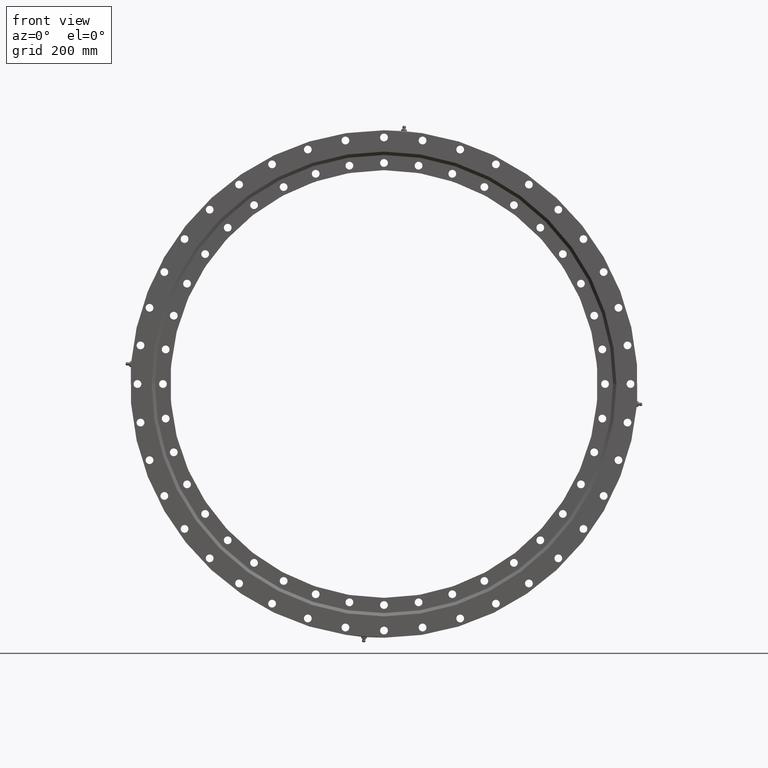
[diagram: clean part render]
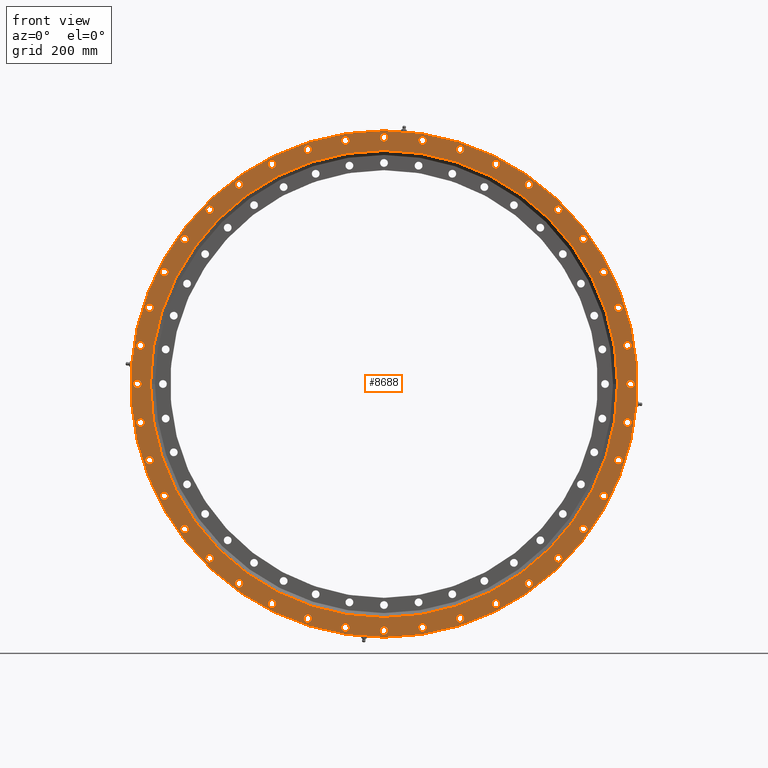
[diagram: same view with one face highlighted and labeled with its STEP entity id]
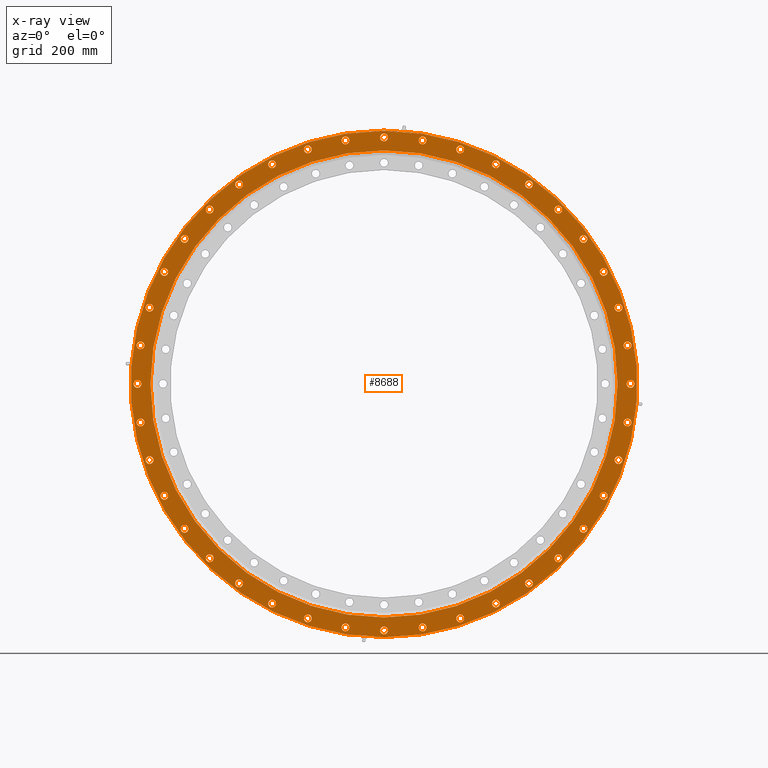
[diagram: x-ray of the same camera — body ghosted, the highlighted face saturated]
A machine part, front view. The second image highlights one B-rep face of the part: STEP entity #8688.
The next image is the same camera in x-ray: the body ghosted, the highlighted face saturated — about 0% of this face is hidden behind the body in this view.
In plain terms, the highlighted planar face has unit normal (-0, 1, 0).
Its self-contained STEP definition (entity closure, byte-faithful):
#7 = FACE_BOUND ( 'NONE', #9949, .T. ) ;
#11 = EDGE_CURVE ( 'NONE', #7321, #907, #5808, .T. ) ;
#22 = CARTESIAN_POINT ( 'NONE',  ( 423.2201497513438000, -28.00000000000003200, 137.5125624968502200 ) ) ;
#24 = EDGE_CURVE ( 'NONE', #5345, #10153, #10437, .T. ) ;
#26 = VERTEX_POINT ( 'NONE', #8468 ) ;
#59 = DIRECTION ( 'NONE',  ( 0.0000000000000000000, 1.000000000000000000, 0.0000000000000000000 ) ) ;
#75 = CARTESIAN_POINT ( 'NONE',  ( -445.0000000000000000, -28.00000000000003200, 7.000000000004950700 ) ) ;
#79 = ORIENTED_EDGE ( 'NONE', *, *, #9713, .T. ) ;
#112 = EDGE_LOOP ( 'NONE', ( #6326, #3003 ) ) ;
#126 = CARTESIAN_POINT ( 'NONE',  ( 360.0125624968503100, -28.00000000000003200, -261.5644372701523800 ) ) ;
#147 = DIRECTION ( 'NONE',  ( 6.982962677686289600E-015, 0.0000000000000000000, -1.000000000000000000 ) ) ;
#158 = CIRCLE ( 'NONE', #323, 7.000000000000004400 ) ;
#192 = ORIENTED_EDGE ( 'NONE', *, *, #8721, .T. ) ;
#203 = CARTESIAN_POINT ( 'NONE',  ( 0.0000000000000000000, -28.00000000000002500, 0.0000000000000000000 ) ) ;
#213 = DIRECTION ( 'NONE',  ( 0.0000000000000000000, 1.000000000000000000, 0.0000000000000000000 ) ) ;
#214 = VERTEX_POINT ( 'NONE', #6274 ) ;
#217 = VERTEX_POINT ( 'NONE', #2215 ) ;
#244 = CARTESIAN_POINT ( 'NONE',  ( 360.0125624968522400, -28.00000000000003200, 254.5644372701496500 ) ) ;
#257 = CARTESIAN_POINT ( 'NONE',  ( -396.4979032638256600, -28.00000000000003200, -209.0257723840944700 ) ) ;
#264 = CIRCLE ( 'NONE', #9224, 7.000000000000006200 ) ;
#284 = DIRECTION ( 'NONE',  ( 1.000000000000000000, 0.0000000000000000000, 1.047444401652940600E-014 ) ) ;
#323 = AXIS2_PLACEMENT_3D ( 'NONE', #705, #9919, #6526 ) ;
#326 = ORIENTED_EDGE ( 'NONE', *, *, #9676, .T. ) ;
#337 = CARTESIAN_POINT ( 'NONE',  ( -445.0000000000000000, -28.00000000000003200, -6.999999999995067900 ) ) ;
#341 = CARTESIAN_POINT ( 'NONE',  ( 0.0000000000000000000, -28.00000000000003200, 421.4750000000000800 ) ) ;
#365 = AXIS2_PLACEMENT_3D ( 'NONE', #2631, #2497, #1639 ) ;
#378 = CARTESIAN_POINT ( 'NONE',  ( 137.5125624968522700, -28.00000000000003200, 423.2201497513431700 ) ) ;
#384 = DIRECTION ( 'NONE',  ( -1.000000000000000000, 0.0000000000000000000, -3.491481338843116800E-015 ) ) ;
#387 = AXIS2_PLACEMENT_3D ( 'NONE', #3572, #8493, #2759 ) ;
#389 = EDGE_CURVE ( 'NONE', #6768, #1501, #10502, .T. ) ;
#391 = CIRCLE ( 'NONE', #6931, 7.000000000000006200 ) ;
#398 = CIRCLE ( 'NONE', #8954, 6.999999999999981300 ) ;
#417 = CARTESIAN_POINT ( 'NONE',  ( 261.5644372701484600, -28.00000000000003200, -353.0125624968531500 ) ) ;
#430 = CARTESIAN_POINT ( 'NONE',  ( -439.5213115648355700, -28.00000000000003200, 69.61333694290772200 ) ) ;
#490 = CARTESIAN_POINT ( 'NONE',  ( 439.5213115648365400, -28.00000000000003200, 69.61333694290131300 ) ) ;
#510 = CARTESIAN_POINT ( 'NONE',  ( 360.0125624968503100, -28.00000000000003200, -268.5644372701523800 ) ) ;
#513 = ORIENTED_EDGE ( 'NONE', *, *, #4657, .T. ) ;
#515 = EDGE_CURVE ( 'NONE', #6635, #5357, #10207, .T. ) ;
#531 = FACE_BOUND ( 'NONE', #3286, .T. ) ;
#547 = FACE_BOUND ( 'NONE', #2807, .T. ) ;
#551 = EDGE_LOOP ( 'NONE', ( #5631, #4305 ) ) ;
#552 = DIRECTION ( 'NONE',  ( 0.4539904997395360400, 0.0000000000000000000, 0.8910065241883734500 ) ) ;
#555 = DIRECTION ( 'NONE',  ( 0.0000000000000000000, 1.000000000000000000, 0.0000000000000000000 ) ) ;
#561 = CARTESIAN_POINT ( 'NONE',  ( 0.0000000000000000000, -28.00000000000002500, -1.764280295649726400E-015 ) ) ;
#568 = DIRECTION ( 'NONE',  ( -0.3090169943749462900, 0.0000000000000000000, 0.9510565162951539800 ) ) ;
#571 = DIRECTION ( 'NONE',  ( 0.8910065241883716700, 0.0000000000000000000, -0.4539904997395390900 ) ) ;
#583 = CARTESIAN_POINT ( 'NONE',  ( 6.494804694057165800E-012, -28.00000000000003200, 452.0000000000000000 ) ) ;
#589 = VERTEX_POINT ( 'NONE', #6266 ) ;
#591 = VERTEX_POINT ( 'NONE', #9244 ) ;
#596 = CIRCLE ( 'NONE', #5714, 7.000000000000008000 ) ;
#600 = ORIENTED_EDGE ( 'NONE', *, *, #2839, .T. ) ;
#604 = EDGE_CURVE ( 'NONE', #1742, #8048, #3016, .T. ) ;
#624 = EDGE_CURVE ( 'NONE', #7052, #9271, #6372, .T. ) ;
#650 = ORIENTED_EDGE ( 'NONE', *, *, #5616, .T. ) ;
#666 = AXIS2_PLACEMENT_3D ( 'NONE', #850, #6657, #3476 ) ;
#681 = CARTESIAN_POINT ( 'NONE',  ( 396.4979032638243600, -28.00000000000003200, 202.0257723840970500 ) ) ;
#703 = AXIS2_PLACEMENT_3D ( 'NONE', #6018, #213, #5189 ) ;
#705 = CARTESIAN_POINT ( 'NONE',  ( 261.5644372701484600, -28.00000000000003200, -360.0125624968531500 ) ) ;
#706 = EDGE_LOOP ( 'NONE', ( #764, #8897 ) ) ;
#718 = DIRECTION ( 'NONE',  ( -0.7071067811865436900, 0.0000000000000000000, -0.7071067811865515700 ) ) ;
#725 = AXIS2_PLACEMENT_3D ( 'NONE', #1598, #4874, #9822 ) ;
#731 = VERTEX_POINT ( 'NONE', #3447 ) ;
#740 = ORIENTED_EDGE ( 'NONE', *, *, #2974, .T. ) ;
#756 = DIRECTION ( 'NONE',  ( 0.5877852522924617000, 0.0000000000000000000, 0.8090169943749556700 ) ) ;
#764 = ORIENTED_EDGE ( 'NONE', *, *, #624, .T. ) ;
#768 = CIRCLE ( 'NONE', #1462, 7.000000000000000900 ) ;
#774 = DIRECTION ( 'NONE',  ( -0.1564344650402250400, 0.0000000000000000000, -0.9876883405951386600 ) ) ;
#800 = FACE_BOUND ( 'NONE', #10736, .T. ) ;
#830 = CARTESIAN_POINT ( 'NONE',  ( -137.5125624968550000, -28.00000000000003200, -423.2201497513422600 ) ) ;
#850 = CARTESIAN_POINT ( 'NONE',  ( -314.6625176280096000, -28.00000000000003200, 314.6625176280177200 ) ) ;
#854 = CARTESIAN_POINT ( 'NONE',  ( -360.0125624968483200, -28.00000000000003200, 261.5644372701550500 ) ) ;
#867 = EDGE_CURVE ( 'NONE', #6427, #9398, #3258, .T. ) ;
#907 = VERTEX_POINT ( 'NONE', #7975 ) ;
#914 = FACE_BOUND ( 'NONE', #2239, .T. ) ;
#919 = DIRECTION ( 'NONE',  ( 0.0000000000000000000, 1.000000000000000000, 0.0000000000000000000 ) ) ;
#948 = DIRECTION ( 'NONE',  ( 0.0000000000000000000, 1.000000000000000000, 0.0000000000000000000 ) ) ;
#980 = CARTESIAN_POINT ( 'NONE',  ( -3.387386302486776800E-012, -28.00000000000003200, -445.0000000000000000 ) ) ;
#1063 = CIRCLE ( 'NONE', #9019, 7.000000000000007100 ) ;
#1066 = FACE_BOUND ( 'NONE', #9774, .T. ) ;
#1085 = AXIS2_PLACEMENT_3D ( 'NONE', #9748, #4808, #6460 ) ;
#1088 = DIRECTION ( 'NONE',  ( 0.0000000000000000000, 1.000000000000000000, 0.0000000000000000000 ) ) ;
#1095 = EDGE_CURVE ( 'NONE', #3083, #2721, #5326, .T. ) ;
#1102 = EDGE_CURVE ( 'NONE', #1377, #9401, #7273, .T. ) ;
#1105 = CARTESIAN_POINT ( 'NONE',  ( -202.0257723840929600, -28.00000000000003200, 396.4979032638264000 ) ) ;
#1143 = CARTESIAN_POINT ( 'NONE',  ( -396.4979032638256600, -28.00000000000003200, -195.0257723840944700 ) ) ;
#1159 = DIRECTION ( 'NONE',  ( -0.8090169943749492300, 0.0000000000000000000, 0.5877852522924706900 ) ) ;
#1160 = CARTESIAN_POINT ( 'NONE',  ( -439.5213115648355700, -28.00000000000003200, 76.61333694290772200 ) ) ;
#1200 = CIRCLE ( 'NONE', #9944, 7.000000000000013300 ) ;
#1211 = CARTESIAN_POINT ( 'NONE',  ( 5.596635872103403800E-014, -28.00000000000002500, -456.9999999999999400 ) ) ;
#1219 = ORIENTED_EDGE ( 'NONE', *, *, #5769, .T. ) ;
#1246 = CIRCLE ( 'NONE', #3585, 7.000000000000006200 ) ;
#1265 = AXIS2_PLACEMENT_3D ( 'NONE', #2129, #555, #10197 ) ;
#1269 = ORIENTED_EDGE ( 'NONE', *, *, #9247, .T. ) ;
#1271 = ORIENTED_EDGE ( 'NONE', *, *, #10397, .T. ) ;
#1272 = DIRECTION ( 'NONE',  ( -0.9876883405951384400, 0.0000000000000000000, 0.1564344650402269600 ) ) ;
#1304 = DIRECTION ( 'NONE',  ( -0.4539904997395423100, 0.0000000000000000000, -0.8910065241883701200 ) ) ;
#1323 = CIRCLE ( 'NONE', #5731, 7.000000000000032900 ) ;
#1331 = CIRCLE ( 'NONE', #10631, 7.000000000000016900 ) ;
#1337 = CIRCLE ( 'NONE', #3119, 6.999999999999984900 ) ;
#1339 = CARTESIAN_POINT ( 'NONE',  ( -445.0000000000000000, -28.00000000000003200, 4.941095498271971500E-012 ) ) ;
#1344 = CIRCLE ( 'NONE', #10335, 456.9999999999999400 ) ;
#1346 = CARTESIAN_POINT ( 'NONE',  ( -314.6625176280165900, -28.00000000000003200, -321.6625176280106800 ) ) ;
#1348 = AXIS2_PLACEMENT_3D ( 'NONE', #6524, #8071, #2335 ) ;
#1360 = DIRECTION ( 'NONE',  ( 0.0000000000000000000, -1.000000000000000000, 0.0000000000000000000 ) ) ;
#1373 = EDGE_CURVE ( 'NONE', #5256, #10204, #8166, .T. ) ;
#1377 = VERTEX_POINT ( 'NONE', #3103 ) ;
#1379 = CARTESIAN_POINT ( 'NONE',  ( -69.61333694289649500, -28.00000000000003200, 439.5213115648373900 ) ) ;
#1381 = CARTESIAN_POINT ( 'NONE',  ( 314.6625176280144300, -28.00000000000003200, 307.6625176280128900 ) ) ;
#1387 = CARTESIAN_POINT ( 'NONE',  ( 202.0257723840989000, -28.00000000000003200, 396.4979032638233900 ) ) ;
#1406 = EDGE_LOOP ( 'NONE', ( #1219, #2985 ) ) ;
#1412 = CIRCLE ( 'NONE', #4721, 7.000000000000014200 ) ;
#1416 = CARTESIAN_POINT ( 'NONE',  ( -423.2201497513418100, -28.00000000000003200, 137.5125624968566200 ) ) ;
#1428 = DIRECTION ( 'NONE',  ( 0.0000000000000000000, 0.0000000000000000000, 1.000000000000000000 ) ) ;
#1434 = AXIS2_PLACEMENT_3D ( 'NONE', #9551, #7942, #9216 ) ;
#1438 = CIRCLE ( 'NONE', #3454, 7.000000000000032900 ) ;
#1460 = EDGE_CURVE ( 'NONE', #5953, #9380, #5335, .T. ) ;
#1462 = AXIS2_PLACEMENT_3D ( 'NONE', #830, #5801, #1509 ) ;
#1486 = EDGE_CURVE ( 'NONE', #10444, #2846, #4175, .T. ) ;
#1489 = CARTESIAN_POINT ( 'NONE',  ( -202.0257723840929600, -28.00000000000003200, 389.4979032638264000 ) ) ;
#1498 = CARTESIAN_POINT ( 'NONE',  ( 137.5125624968487400, -28.00000000000003200, -423.2201497513443100 ) ) ;
#1500 = CARTESIAN_POINT ( 'NONE',  ( -137.5125624968457300, -28.00000000000003200, 423.2201497513453300 ) ) ;
#1501 = VERTEX_POINT ( 'NONE', #3261 ) ;
#1509 = DIRECTION ( 'NONE',  ( -0.3090169943749427300, 0.0000000000000000000, -0.9510565162951550900 ) ) ;
#1516 = EDGE_CURVE ( 'NONE', #2730, #5346, #7295, .T. ) ;
#1519 = EDGE_CURVE ( 'NONE', #1922, #9983, #1331, .T. ) ;
#1539 = VERTEX_POINT ( 'NONE', #2028 ) ;
#1556 = CARTESIAN_POINT ( 'NONE',  ( -261.5644372701537500, -28.00000000000003200, -353.0125624968492800 ) ) ;
#1566 = VERTEX_POINT ( 'NONE', #1381 ) ;
#1568 = EDGE_CURVE ( 'NONE', #5832, #5894, #8893, .T. ) ;
#1575 = CARTESIAN_POINT ( 'NONE',  ( -202.0257723840929600, -28.00000000000003200, 396.4979032638264000 ) ) ;
#1576 = AXIS2_PLACEMENT_3D ( 'NONE', #4449, #3168, #5260 ) ;
#1584 = ORIENTED_EDGE ( 'NONE', *, *, #1519, .T. ) ;
#1598 = CARTESIAN_POINT ( 'NONE',  ( 314.6625176280144300, -28.00000000000003200, 314.6625176280128900 ) ) ;
#1603 = ORIENTED_EDGE ( 'NONE', *, *, #1568, .T. ) ;
#1608 = AXIS2_PLACEMENT_3D ( 'NONE', #7298, #2374, #3187 ) ;
#1611 = CARTESIAN_POINT ( 'NONE',  ( 261.5644372701511300, -28.00000000000003200, 360.0125624968512200 ) ) ;
#1622 = DIRECTION ( 'NONE',  ( 0.0000000000000000000, 1.000000000000000000, 0.0000000000000000000 ) ) ;
#1629 = CARTESIAN_POINT ( 'NONE',  ( -423.2201497513418100, -28.00000000000003200, 137.5125624968566200 ) ) ;
#1634 = AXIS2_PLACEMENT_3D ( 'NONE', #4120, #9876, #3002 ) ;
#1639 = DIRECTION ( 'NONE',  ( 0.8910065241883716700, 0.0000000000000000000, -0.4539904997395390900 ) ) ;
#1650 = AXIS2_PLACEMENT_3D ( 'NONE', #341, #2148, #3797 ) ;
#1665 = ORIENTED_EDGE ( 'NONE', *, *, #7635, .T. ) ;
#1686 = DIRECTION ( 'NONE',  ( 0.9510565162951562000, 0.0000000000000000000, -0.3090169943749391800 ) ) ;
#1697 = EDGE_LOOP ( 'NONE', ( #10310, #7041 ) ) ;
#1702 = ORIENTED_EDGE ( 'NONE', *, *, #7082, .T. ) ;
#1716 = DIRECTION ( 'NONE',  ( 0.0000000000000000000, 1.000000000000000000, 0.0000000000000000000 ) ) ;
#1724 = EDGE_CURVE ( 'NONE', #6316, #4290, #158, .T. ) ;
#1740 = DIRECTION ( 'NONE',  ( 0.0000000000000000000, 1.000000000000000000, 0.0000000000000000000 ) ) ;
#1742 = VERTEX_POINT ( 'NONE', #9340 ) ;
#1777 = DIRECTION ( 'NONE',  ( 0.0000000000000000000, 1.000000000000000000, 0.0000000000000000000 ) ) ;
#1784 = DIRECTION ( 'NONE',  ( -0.8910065241883653500, 0.0000000000000000000, -0.4539904997395518000 ) ) ;
#1851 = CIRCLE ( 'NONE', #9940, 7.000000000000017800 ) ;
#1864 = CIRCLE ( 'NONE', #725, 7.000000000000014200 ) ;
#1869 = EDGE_CURVE ( 'NONE', #4149, #3826, #9331, .T. ) ;
#1898 = EDGE_LOOP ( 'NONE', ( #4384, #5050 ) ) ;
#1901 = CARTESIAN_POINT ( 'NONE',  ( -439.5213115648370500, -28.00000000000003200, -76.61333694289805900 ) ) ;
#1904 = VERTEX_POINT ( 'NONE', #4061 ) ;
#1905 = DIRECTION ( 'NONE',  ( 0.3090169943749535000, 0.0000000000000000000, -0.9510565162951515300 ) ) ;
#1922 = VERTEX_POINT ( 'NONE', #7842 ) ;
#1930 = DIRECTION ( 'NONE',  ( 0.9510565162951562000, 0.0000000000000000000, -0.3090169943749391800 ) ) ;
#1941 = CIRCLE ( 'NONE', #4885, 7.000000000000006200 ) ;
#1953 = DIRECTION ( 'NONE',  ( 0.0000000000000000000, 1.000000000000000000, 0.0000000000000000000 ) ) ;
#1996 = DIRECTION ( 'NONE',  ( 0.0000000000000000000, 1.000000000000000000, 0.0000000000000000000 ) ) ;
#2028 = CARTESIAN_POINT ( 'NONE',  ( 396.4979032638227100, -28.00000000000003200, -195.0257723841002900 ) ) ;
#2052 = EDGE_CURVE ( 'NONE', #214, #217, #7908, .T. ) ;
#2067 = CIRCLE ( 'NONE', #6853, 7.000000000000004400 ) ;
#2072 = DIRECTION ( 'NONE',  ( 0.3090169943749355700, 0.0000000000000000000, 0.9510565162951574200 ) ) ;
#2075 = CIRCLE ( 'NONE', #7783, 6.999999999999974200 ) ;
#2082 = CARTESIAN_POINT ( 'NONE',  ( 202.0257723840958300, -28.00000000000003200, -403.4979032638249800 ) ) ;
#2088 = EDGE_CURVE ( 'NONE', #7568, #7293, #7413, .T. ) ;
#2104 = EDGE_CURVE ( 'NONE', #9480, #7958, #7791, .T. ) ;
#2113 = ORIENTED_EDGE ( 'NONE', *, *, #1373, .T. ) ;
#2129 = CARTESIAN_POINT ( 'NONE',  ( -396.4979032638256600, -28.00000000000003200, -202.0257723840944700 ) ) ;
#2148 = DIRECTION ( 'NONE',  ( -0.0000000000000000000, 1.000000000000000000, 0.0000000000000000000 ) ) ;
#2156 = DIRECTION ( 'NONE',  ( -0.4539904997395454700, 0.0000000000000000000, 0.8910065241883685600 ) ) ;
#2166 = DIRECTION ( 'NONE',  ( -0.5877852522924706900, 0.0000000000000000000, 0.8090169943749492300 ) ) ;
#2197 = DIRECTION ( 'NONE',  ( 0.0000000000000000000, 1.000000000000000000, 0.0000000000000000000 ) ) ;
#2215 = CARTESIAN_POINT ( 'NONE',  ( 0.0000000000000000000, -28.00000000000002500, 421.4750000000000800 ) ) ;
#2222 = DIRECTION ( 'NONE',  ( 0.0000000000000000000, 0.0000000000000000000, 1.000000000000000000 ) ) ;
#2223 = CIRCLE ( 'NONE', #5523, 7.000000000000017800 ) ;
#2239 = EDGE_LOOP ( 'NONE', ( #7819, #2565 ) ) ;
#2246 = EDGE_CURVE ( 'NONE', #5994, #8973, #9540, .T. ) ;
#2255 = FACE_BOUND ( 'NONE', #10047, .T. ) ;
#2288 = VERTEX_POINT ( 'NONE', #337 ) ;
#2292 = DIRECTION ( 'NONE',  ( -0.4539904997395423100, 0.0000000000000000000, -0.8910065241883701200 ) ) ;
#2304 = CARTESIAN_POINT ( 'NONE',  ( 423.2201497513438000, -28.00000000000003200, 137.5125624968502200 ) ) ;
#2308 = EDGE_CURVE ( 'NONE', #1566, #7294, #1412, .T. ) ;
#2314 = CARTESIAN_POINT ( 'NONE',  ( -439.5213115648370500, -28.00000000000003200, -69.61333694289804400 ) ) ;
#2321 = CIRCLE ( 'NONE', #2419, 7.000000000000004400 ) ;
#2323 = ORIENTED_EDGE ( 'NONE', *, *, #3916, .T. ) ;
#2324 = CARTESIAN_POINT ( 'NONE',  ( -69.61333694290625800, -28.00000000000003200, -439.5213115648357400 ) ) ;
#2332 = EDGE_CURVE ( 'NONE', #4131, #5831, #5271, .T. ) ;
#2335 = DIRECTION ( 'NONE',  ( 0.1564344650402397800, 0.0000000000000000000, -0.9876883405951363300 ) ) ;
#2360 = CIRCLE ( 'NONE', #1348, 6.999999999999983100 ) ;
#2374 = DIRECTION ( 'NONE',  ( 0.0000000000000000000, 1.000000000000000000, 0.0000000000000000000 ) ) ;
#2389 = CARTESIAN_POINT ( 'NONE',  ( 423.2201497513426600, -28.00000000000003200, -144.5125624968537500 ) ) ;
#2402 = CARTESIAN_POINT ( 'NONE',  ( -314.6625176280096000, -28.00000000000003200, 307.6625176280177200 ) ) ;
#2419 = AXIS2_PLACEMENT_3D ( 'NONE', #9533, #4595, #10373 ) ;
#2446 = EDGE_CURVE ( 'NONE', #8080, #5906, #391, .T. ) ;
#2480 = DIRECTION ( 'NONE',  ( 0.0000000000000000000, 1.000000000000000000, 0.0000000000000000000 ) ) ;
#2482 = CIRCLE ( 'NONE', #9651, 6.999999999999995600 ) ;
#2496 = CIRCLE ( 'NONE', #1576, 6.999999999999995600 ) ;
#2497 = DIRECTION ( 'NONE',  ( 0.0000000000000000000, 1.000000000000000000, 0.0000000000000000000 ) ) ;
#2499 = AXIS2_PLACEMENT_3D ( 'NONE', #3966, #8997, #1930 ) ;
#2506 = FACE_BOUND ( 'NONE', #8919, .T. ) ;
#2544 = CARTESIAN_POINT ( 'NONE',  ( 261.5644372701511300, -28.00000000000003200, 367.0125624968512200 ) ) ;
#2546 = CARTESIAN_POINT ( 'NONE',  ( 423.2201497513426600, -28.00000000000003200, -137.5125624968537200 ) ) ;
#2555 = CARTESIAN_POINT ( 'NONE',  ( 360.0125624968503100, -28.00000000000003200, -254.5644372701523800 ) ) ;
#2559 = AXIS2_PLACEMENT_3D ( 'NONE', #2546, #8669, #1686 ) ;
#2563 = CARTESIAN_POINT ( 'NONE',  ( 439.5213115648360800, -28.00000000000003200, -69.61333694290455300 ) ) ;
#2565 = ORIENTED_EDGE ( 'NONE', *, *, #6704, .T. ) ;
#2590 = AXIS2_PLACEMENT_3D ( 'NONE', #3538, #4152, #4045 ) ;
#2593 = VERTEX_POINT ( 'NONE', #257 ) ;
#2625 = CARTESIAN_POINT ( 'NONE',  ( 69.61333694290301800, -28.00000000000003200, 446.5213115648363700 ) ) ;
#2629 = AXIS2_PLACEMENT_3D ( 'NONE', #10183, #6080, #10429 ) ;
#2631 = CARTESIAN_POINT ( 'NONE',  ( 396.4979032638227100, -28.00000000000003200, -202.0257723841002900 ) ) ;
#2650 = ORIENTED_EDGE ( 'NONE', *, *, #5392, .T. ) ;
#2672 = ORIENTED_EDGE ( 'NONE', *, *, #3670, .T. ) ;
#2688 = DIRECTION ( 'NONE',  ( 0.0000000000000000000, 1.000000000000000000, 0.0000000000000000000 ) ) ;
#2705 = AXIS2_PLACEMENT_3D ( 'NONE', #8727, #3811, #9571 ) ;
#2721 = VERTEX_POINT ( 'NONE', #1346 ) ;
#2730 = VERTEX_POINT ( 'NONE', #3039 ) ;
#2759 = DIRECTION ( 'NONE',  ( 0.1564344650402173000, 0.0000000000000000000, 0.9876883405951398800 ) ) ;
#2769 = DIRECTION ( 'NONE',  ( -0.1564344650402308100, 0.0000000000000000000, 0.9876883405951376600 ) ) ;
#2771 = FACE_BOUND ( 'NONE', #9823, .T. ) ;
#2806 = EDGE_CURVE ( 'NONE', #5357, #6635, #4134, .T. ) ;
#2807 = EDGE_LOOP ( 'NONE', ( #1603, #1271 ) ) ;
#2835 = VERTEX_POINT ( 'NONE', #10523 ) ;
#2839 = EDGE_CURVE ( 'NONE', #7958, #9480, #7214, .T. ) ;
#2846 = VERTEX_POINT ( 'NONE', #3107 ) ;
#2902 = EDGE_LOOP ( 'NONE', ( #5079, #79 ) ) ;
#2905 = DIRECTION ( 'NONE',  ( 0.0000000000000000000, 1.000000000000000000, 0.0000000000000000000 ) ) ;
#2908 = AXIS2_PLACEMENT_3D ( 'NONE', #9040, #2480, #8424 ) ;
#2972 = DIRECTION ( 'NONE',  ( 0.0000000000000000000, 1.000000000000000000, 0.0000000000000000000 ) ) ;
#2974 = EDGE_CURVE ( 'NONE', #8973, #5994, #2067, .T. ) ;
#2985 = ORIENTED_EDGE ( 'NONE', *, *, #3886, .T. ) ;
#2990 = CIRCLE ( 'NONE', #6340, 6.999999999999983100 ) ;
#3002 = DIRECTION ( 'NONE',  ( -0.5877852522924706900, 0.0000000000000000000, 0.8090169943749492300 ) ) ;
#3003 = ORIENTED_EDGE ( 'NONE', *, *, #7292, .T. ) ;
#3006 = CARTESIAN_POINT ( 'NONE',  ( -261.5644372701458500, -28.00000000000003200, 360.0125624968551400 ) ) ;
#3016 = CIRCLE ( 'NONE', #9939, 7.000000000000029300 ) ;
#3019 = DIRECTION ( 'NONE',  ( 0.9510565162951504200, 0.0000000000000000000, 0.3090169943749571100 ) ) ;
#3039 = CARTESIAN_POINT ( 'NONE',  ( -261.5644372701537500, -28.00000000000003200, -367.0125624968492800 ) ) ;
#3046 = CARTESIAN_POINT ( 'NONE',  ( -314.6625176280096000, -28.00000000000003200, 314.6625176280177200 ) ) ;
#3076 = CARTESIAN_POINT ( 'NONE',  ( -314.6625176280165900, -28.00000000000003200, -314.6625176280106800 ) ) ;
#3083 = VERTEX_POINT ( 'NONE', #8328 ) ;
#3094 = VERTEX_POINT ( 'NONE', #9201 ) ;
#3101 = ORIENTED_EDGE ( 'NONE', *, *, #6699, .T. ) ;
#3103 = CARTESIAN_POINT ( 'NONE',  ( -423.2201497513418100, -28.00000000000003200, 144.5125624968566200 ) ) ;
#3107 = CARTESIAN_POINT ( 'NONE',  ( 137.5125624968522700, -28.00000000000003200, 430.2201497513431700 ) ) ;
#3119 = AXIS2_PLACEMENT_3D ( 'NONE', #490, #8836, #3606 ) ;
#3147 = DIRECTION ( 'NONE',  ( 0.0000000000000000000, 1.000000000000000000, 0.0000000000000000000 ) ) ;
#3148 = CARTESIAN_POINT ( 'NONE',  ( -3.387386302486776800E-012, -28.00000000000003200, -438.0000000000000000 ) ) ;
#3150 = FACE_BOUND ( 'NONE', #9280, .T. ) ;
#3162 = ORIENTED_EDGE ( 'NONE', *, *, #9860, .T. ) ;
#3168 = DIRECTION ( 'NONE',  ( 0.0000000000000000000, 1.000000000000000000, 0.0000000000000000000 ) ) ;
#3187 = DIRECTION ( 'NONE',  ( -0.5877852522924706900, 0.0000000000000000000, -0.8090169943749492300 ) ) ;
#3189 = CARTESIAN_POINT ( 'NONE',  ( 0.0000000000000000000, -28.00000000000002500, 0.0000000000000000000 ) ) ;
#3194 = AXIS2_PLACEMENT_3D ( 'NONE', #10303, #4534, #9474 ) ;
#3258 = CIRCLE ( 'NONE', #5107, 7.000000000000028400 ) ;
#3261 = CARTESIAN_POINT ( 'NONE',  ( -137.5125624968550000, -28.00000000000003200, -416.2201497513422600 ) ) ;
#3262 = CIRCLE ( 'NONE', #2705, 7.000000000000014200 ) ;
#3285 = CIRCLE ( 'NONE', #3650, 6.999999999999984900 ) ;
#3286 = EDGE_LOOP ( 'NONE', ( #3727, #10701 ) ) ;
#3302 = AXIS2_PLACEMENT_3D ( 'NONE', #378, #5347, #2072 ) ;
#3314 = DIRECTION ( 'NONE',  ( 0.8090169943749427900, 0.0000000000000000000, 0.5877852522924795800 ) ) ;
#3339 = AXIS2_PLACEMENT_3D ( 'NONE', #6786, #1740, #10315 ) ;
#3362 = CARTESIAN_POINT ( 'NONE',  ( 137.5125624968522700, -28.00000000000003200, 416.2201497513431100 ) ) ;
#3437 = CIRCLE ( 'NONE', #1634, 7.000000000000016900 ) ;
#3443 = DIRECTION ( 'NONE',  ( 0.0000000000000000000, 1.000000000000000000, 0.0000000000000000000 ) ) ;
#3447 = CARTESIAN_POINT ( 'NONE',  ( 137.5125624968487400, -28.00000000000003200, -430.2201497513443100 ) ) ;
#3454 = AXIS2_PLACEMENT_3D ( 'NONE', #2314, #7231, #10301 ) ;
#3460 = EDGE_LOOP ( 'NONE', ( #2113, #5770 ) ) ;
#3473 = EDGE_CURVE ( 'NONE', #5346, #2730, #4609, .T. ) ;
#3476 = DIRECTION ( 'NONE',  ( -0.7071067811865475700, 0.0000000000000000000, 0.7071067811865475700 ) ) ;
#3499 = EDGE_LOOP ( 'NONE', ( #192, #7428 ) ) ;
#3506 = FACE_BOUND ( 'NONE', #7076, .T. ) ;
#3510 = ORIENTED_EDGE ( 'NONE', *, *, #4956, .T. ) ;
#3525 = DIRECTION ( 'NONE',  ( 0.0000000000000000000, 1.000000000000000000, 0.0000000000000000000 ) ) ;
#3532 = VERTEX_POINT ( 'NONE', #10594 ) ;
#3538 = CARTESIAN_POINT ( 'NONE',  ( -396.4979032638212300, -28.00000000000003200, 202.0257723841031300 ) ) ;
#3558 = CARTESIAN_POINT ( 'NONE',  ( 137.5125624968487400, -28.00000000000003200, -423.2201497513443100 ) ) ;
#3570 = AXIS2_PLACEMENT_3D ( 'NONE', #9382, #8034, #1159 ) ;
#3572 = CARTESIAN_POINT ( 'NONE',  ( 69.61333694290301800, -28.00000000000003200, 439.5213115648363700 ) ) ;
#3585 = AXIS2_PLACEMENT_3D ( 'NONE', #1339, #6932, #5501 ) ;
#3606 = DIRECTION ( 'NONE',  ( 0.9876883405951359900, 0.0000000000000000000, 0.1564344650402417200 ) ) ;
#3612 = DIRECTION ( 'NONE',  ( 0.0000000000000000000, 0.0000000000000000000, 1.000000000000000000 ) ) ;
#3636 = CARTESIAN_POINT ( 'NONE',  ( -137.5125624968457300, -28.00000000000003200, 416.2201497513452800 ) ) ;
#3637 = ORIENTED_EDGE ( 'NONE', *, *, #1102, .T. ) ;
#3641 = FACE_BOUND ( 'NONE', #6396, .T. ) ;
#3646 = AXIS2_PLACEMENT_3D ( 'NONE', #1500, #4844, #568 ) ;
#3650 = AXIS2_PLACEMENT_3D ( 'NONE', #8865, #6291, #7933 ) ;
#3670 = EDGE_CURVE ( 'NONE', #1501, #6768, #768, .T. ) ;
#3676 = CARTESIAN_POINT ( 'NONE',  ( 314.6625176280144300, -28.00000000000003200, 321.6625176280128900 ) ) ;
#3706 = AXIS2_PLACEMENT_3D ( 'NONE', #1379, #7209, #4250 ) ;
#3727 = ORIENTED_EDGE ( 'NONE', *, *, #8332, .T. ) ;
#3771 = AXIS2_PLACEMENT_3D ( 'NONE', #5678, #6373, #571 ) ;
#3797 = DIRECTION ( 'NONE',  ( 0.0000000000000000000, 0.0000000000000000000, 1.000000000000000000 ) ) ;
#3811 = DIRECTION ( 'NONE',  ( 0.0000000000000000000, 1.000000000000000000, 0.0000000000000000000 ) ) ;
#3814 = CARTESIAN_POINT ( 'NONE',  ( 6.494804694057165800E-012, -28.00000000000003200, 445.0000000000000000 ) ) ;
#3826 = VERTEX_POINT ( 'NONE', #9249 ) ;
#3852 = DIRECTION ( 'NONE',  ( -0.7071067811865475700, 0.0000000000000000000, 0.7071067811865475700 ) ) ;
#3886 = EDGE_CURVE ( 'NONE', #7473, #4549, #7578, .T. ) ;
#3916 = EDGE_CURVE ( 'NONE', #7563, #6775, #9260, .T. ) ;
#3921 = FACE_OUTER_BOUND ( 'NONE', #10543, .T. ) ;
#3928 = CARTESIAN_POINT ( 'NONE',  ( 261.5644372701484600, -28.00000000000003200, -367.0125624968531500 ) ) ;
#3936 = CARTESIAN_POINT ( 'NONE',  ( 396.4979032638227100, -28.00000000000003200, -209.0257723841002900 ) ) ;
#3938 = DIRECTION ( 'NONE',  ( -0.8090169943749427900, 0.0000000000000000000, -0.5877852522924795800 ) ) ;
#3939 = ORIENTED_EDGE ( 'NONE', *, *, #8873, .T. ) ;
#3966 = CARTESIAN_POINT ( 'NONE',  ( 423.2201497513426600, -28.00000000000003200, -137.5125624968537200 ) ) ;
#3968 = VERTEX_POINT ( 'NONE', #75 ) ;
#3991 = CIRCLE ( 'NONE', #666, 7.000000000000013300 ) ;
#3992 = VERTEX_POINT ( 'NONE', #2555 ) ;
#4017 = DIRECTION ( 'NONE',  ( 0.0000000000000000000, 0.0000000000000000000, 1.000000000000000000 ) ) ;
#4045 = DIRECTION ( 'NONE',  ( -0.8910065241883685600, 0.0000000000000000000, 0.4539904997395454700 ) ) ;
#4061 = CARTESIAN_POINT ( 'NONE',  ( -314.6625176280096000, -28.00000000000003200, 321.6625176280177200 ) ) ;
#4079 = AXIS2_PLACEMENT_3D ( 'NONE', #1575, #7903, #2156 ) ;
#4086 = CIRCLE ( 'NONE', #7127, 7.000000000000006200 ) ;
#4089 = EDGE_CURVE ( 'NONE', #7293, #7568, #5284, .T. ) ;
#4090 = ORIENTED_EDGE ( 'NONE', *, *, #2088, .T. ) ;
#4096 = EDGE_CURVE ( 'NONE', #2721, #3083, #2075, .T. ) ;
#4113 = CIRCLE ( 'NONE', #1265, 6.999999999999983100 ) ;
#4117 = ORIENTED_EDGE ( 'NONE', *, *, #9987, .T. ) ;
#4120 = CARTESIAN_POINT ( 'NONE',  ( -261.5644372701458500, -28.00000000000003200, 360.0125624968551400 ) ) ;
#4131 = VERTEX_POINT ( 'NONE', #2625 ) ;
#4134 = CIRCLE ( 'NONE', #9821, 7.000000000000004400 ) ;
#4146 = CARTESIAN_POINT ( 'NONE',  ( 360.0125624968522400, -28.00000000000003200, 261.5644372701496500 ) ) ;
#4149 = VERTEX_POINT ( 'NONE', #8319 ) ;
#4152 = DIRECTION ( 'NONE',  ( 0.0000000000000000000, 1.000000000000000000, 0.0000000000000000000 ) ) ;
#4175 = CIRCLE ( 'NONE', #2908, 6.999999999999983100 ) ;
#4179 = FACE_BOUND ( 'NONE', #8884, .T. ) ;
#4189 = FACE_BOUND ( 'NONE', #7285, .T. ) ;
#4207 = VERTEX_POINT ( 'NONE', #6806 ) ;
#4208 = EDGE_CURVE ( 'NONE', #10204, #5256, #7351, .T. ) ;
#4250 = DIRECTION ( 'NONE',  ( -0.1564344650402308100, 0.0000000000000000000, 0.9876883405951376600 ) ) ;
#4251 = EDGE_CURVE ( 'NONE', #3992, #9948, #8228, .T. ) ;
#4273 = AXIS2_PLACEMENT_3D ( 'NONE', #203, #5173, #3612 ) ;
#4274 = AXIS2_PLACEMENT_3D ( 'NONE', #2563, #9934, #8222 ) ;
#4290 = VERTEX_POINT ( 'NONE', #3928 ) ;
#4305 = ORIENTED_EDGE ( 'NONE', *, *, #4096, .T. ) ;
#4312 = FACE_BOUND ( 'NONE', #7726, .T. ) ;
#4314 = VERTEX_POINT ( 'NONE', #2082 ) ;
#4337 = DIRECTION ( 'NONE',  ( -0.3090169943749462900, 0.0000000000000000000, 0.9510565162951539800 ) ) ;
#4344 = CARTESIAN_POINT ( 'NONE',  ( 445.0000000000000000, -28.00000000000003200, -1.833677106701582500E-012 ) ) ;
#4348 = EDGE_LOOP ( 'NONE', ( #8124, #10170 ) ) ;
#4362 = CIRCLE ( 'NONE', #5289, 7.000000000000006200 ) ;
#4370 = ORIENTED_EDGE ( 'NONE', *, *, #5656, .T. ) ;
#4384 = ORIENTED_EDGE ( 'NONE', *, *, #8475, .T. ) ;
#4395 = EDGE_LOOP ( 'NONE', ( #1665, #3101 ) ) ;
#4411 = VERTEX_POINT ( 'NONE', #1160 ) ;
#4415 = ORIENTED_EDGE ( 'NONE', *, *, #2104, .T. ) ;
#4420 = FACE_BOUND ( 'NONE', #5333, .T. ) ;
#4426 = EDGE_CURVE ( 'NONE', #7906, #1904, #3991, .T. ) ;
#4442 = DIRECTION ( 'NONE',  ( 0.0000000000000000000, -1.000000000000000000, 0.0000000000000000000 ) ) ;
#4449 = CARTESIAN_POINT ( 'NONE',  ( 202.0257723840958300, -28.00000000000003200, -396.4979032638249800 ) ) ;
#4450 = DIRECTION ( 'NONE',  ( 0.7071067811865395800, 0.0000000000000000000, 0.7071067811865554600 ) ) ;
#4462 = ORIENTED_EDGE ( 'NONE', *, *, #6059, .T. ) ;
#4481 = CARTESIAN_POINT ( 'NONE',  ( -202.0257723841016900, -28.00000000000003200, -389.4979032638220200 ) ) ;
#4486 = CARTESIAN_POINT ( 'NONE',  ( -445.0000000000000000, -28.00000000000003200, 4.941095498271971500E-012 ) ) ;
#4515 = EDGE_LOOP ( 'NONE', ( #2323, #8253 ) ) ;
#4525 = DIRECTION ( 'NONE',  ( 0.0000000000000000000, 1.000000000000000000, 0.0000000000000000000 ) ) ;
#4526 = ORIENTED_EDGE ( 'NONE', *, *, #2246, .T. ) ;
#4534 = DIRECTION ( 'NONE',  ( 0.0000000000000000000, 1.000000000000000000, 0.0000000000000000000 ) ) ;
#4549 = VERTEX_POINT ( 'NONE', #5574 ) ;
#4595 = DIRECTION ( 'NONE',  ( 0.0000000000000000000, 1.000000000000000000, 0.0000000000000000000 ) ) ;
#4609 = CIRCLE ( 'NONE', #1608, 7.000000000000016900 ) ;
#4620 = EDGE_CURVE ( 'NONE', #589, #4411, #7592, .T. ) ;
#4657 = EDGE_CURVE ( 'NONE', #4290, #6316, #2321, .T. ) ;
#4689 = EDGE_CURVE ( 'NONE', #1904, #7906, #10696, .T. ) ;
#4697 = ORIENTED_EDGE ( 'NONE', *, *, #2806, .T. ) ;
#4721 = AXIS2_PLACEMENT_3D ( 'NONE', #5261, #10208, #4450 ) ;
#4734 = ORIENTED_EDGE ( 'NONE', *, *, #1486, .T. ) ;
#4743 = EDGE_CURVE ( 'NONE', #2593, #5279, #4113, .T. ) ;
#4756 = CARTESIAN_POINT ( 'NONE',  ( -360.0125624968541700, -28.00000000000003200, -261.5644372701469800 ) ) ;
#4783 = ORIENTED_EDGE ( 'NONE', *, *, #2446, .T. ) ;
#4784 = DIRECTION ( 'NONE',  ( 0.3090169943749535000, 0.0000000000000000000, -0.9510565162951515300 ) ) ;
#4807 = AXIS2_PLACEMENT_3D ( 'NONE', #7745, #1996, #6929 ) ;
#4808 = DIRECTION ( 'NONE',  ( 0.0000000000000000000, 1.000000000000000000, 0.0000000000000000000 ) ) ;
#4837 = EDGE_LOOP ( 'NONE', ( #9891, #2650 ) ) ;
#4844 = DIRECTION ( 'NONE',  ( 0.0000000000000000000, 1.000000000000000000, 0.0000000000000000000 ) ) ;
#4874 = DIRECTION ( 'NONE',  ( 0.0000000000000000000, 1.000000000000000000, 0.0000000000000000000 ) ) ;
#4885 = AXIS2_PLACEMENT_3D ( 'NONE', #10715, #1622, #7219 ) ;
#4887 = DIRECTION ( 'NONE',  ( -0.9510565162951527500, 0.0000000000000000000, -0.3090169943749498900 ) ) ;
#4890 = VERTEX_POINT ( 'NONE', #2389 ) ;
#4905 = CARTESIAN_POINT ( 'NONE',  ( 202.0257723840989000, -28.00000000000003200, 389.4979032638233900 ) ) ;
#4907 = CARTESIAN_POINT ( 'NONE',  ( 69.61333694289959300, -28.00000000000003200, -432.5213115648367600 ) ) ;
#4909 = CARTESIAN_POINT ( 'NONE',  ( -69.61333694290625800, -28.00000000000003200, -439.5213115648357400 ) ) ;
#4913 = DIRECTION ( 'NONE',  ( -0.9510565162951539800, 0.0000000000000000000, 0.3090169943749462900 ) ) ;
#4920 = CARTESIAN_POINT ( 'NONE',  ( -360.0125624968541700, -28.00000000000003200, -254.5644372701469800 ) ) ;
#4924 = DIRECTION ( 'NONE',  ( 0.4539904997395549100, 0.0000000000000000000, -0.8910065241883636800 ) ) ;
#4947 = AXIS2_PLACEMENT_3D ( 'NONE', #22, #4987, #9924 ) ;
#4951 = FACE_BOUND ( 'NONE', #6555, .T. ) ;
#4956 = EDGE_CURVE ( 'NONE', #5276, #4890, #7328, .T. ) ;
#4986 = EDGE_CURVE ( 'NONE', #9261, #7828, #4362, .T. ) ;
#4987 = DIRECTION ( 'NONE',  ( 0.0000000000000000000, 1.000000000000000000, 0.0000000000000000000 ) ) ;
#4989 = ORIENTED_EDGE ( 'NONE', *, *, #8686, .T. ) ;
#5016 = EDGE_CURVE ( 'NONE', #7828, #9261, #7059, .T. ) ;
#5026 = EDGE_LOOP ( 'NONE', ( #2672, #6799 ) ) ;
#5029 = AXIS2_PLACEMENT_3D ( 'NONE', #7558, #948, #4337 ) ;
#5050 = ORIENTED_EDGE ( 'NONE', *, *, #2308, .T. ) ;
#5079 = ORIENTED_EDGE ( 'NONE', *, *, #5444, .T. ) ;
#5094 = CARTESIAN_POINT ( 'NONE',  ( -261.5644372701458500, -28.00000000000003200, 353.0125624968551400 ) ) ;
#5107 = AXIS2_PLACEMENT_3D ( 'NONE', #7946, #2197, #7129 ) ;
#5155 = DIRECTION ( 'NONE',  ( -0.9510565162951539800, 0.0000000000000000000, 0.3090169943749462900 ) ) ;
#5173 = DIRECTION ( 'NONE',  ( -0.0000000000000000000, 1.000000000000000000, -0.0000000000000000000 ) ) ;
#5174 = VERTEX_POINT ( 'NONE', #8894 ) ;
#5189 = DIRECTION ( 'NONE',  ( -0.8090169943749427900, 0.0000000000000000000, -0.5877852522924795800 ) ) ;
#5198 = ORIENTED_EDGE ( 'NONE', *, *, #7796, .T. ) ;
#5252 = CIRCLE ( 'NONE', #3771, 6.999999999999994700 ) ;
#5256 = VERTEX_POINT ( 'NONE', #7215 ) ;
#5259 = CARTESIAN_POINT ( 'NONE',  ( 439.5213115648360800, -28.00000000000003200, -69.61333694290455300 ) ) ;
#5260 = DIRECTION ( 'NONE',  ( 0.4539904997395549100, 0.0000000000000000000, -0.8910065241883636800 ) ) ;
#5261 = CARTESIAN_POINT ( 'NONE',  ( 314.6625176280144300, -28.00000000000003200, 314.6625176280128900 ) ) ;
#5271 = CIRCLE ( 'NONE', #387, 7.000000000000013300 ) ;
#5276 = VERTEX_POINT ( 'NONE', #8334 ) ;
#5279 = VERTEX_POINT ( 'NONE', #1143 ) ;
#5284 = CIRCLE ( 'NONE', #5029, 7.000000000000008900 ) ;
#5287 = ORIENTED_EDGE ( 'NONE', *, *, #8029, .T. ) ;
#5289 = AXIS2_PLACEMENT_3D ( 'NONE', #9362, #5466, #10391 ) ;
#5305 = AXIS2_PLACEMENT_3D ( 'NONE', #4909, #919, #774 ) ;
#5326 = CIRCLE ( 'NONE', #9163, 6.999999999999974200 ) ;
#5327 = EDGE_CURVE ( 'NONE', #5174, #8382, #10737, .T. ) ;
#5333 = EDGE_LOOP ( 'NONE', ( #4090, #8691 ) ) ;
#5335 = CIRCLE ( 'NONE', #7030, 6.999999999999983100 ) ;
#5345 = VERTEX_POINT ( 'NONE', #7424 ) ;
#5346 = VERTEX_POINT ( 'NONE', #1556 ) ;
#5347 = DIRECTION ( 'NONE',  ( 0.0000000000000000000, 1.000000000000000000, 0.0000000000000000000 ) ) ;
#5357 = VERTEX_POINT ( 'NONE', #4920 ) ;
#5372 = AXIS2_PLACEMENT_3D ( 'NONE', #5901, #59, #2292 ) ;
#5392 = EDGE_CURVE ( 'NONE', #4314, #3532, #2496, .T. ) ;
#5444 = EDGE_CURVE ( 'NONE', #1539, #8793, #5252, .T. ) ;
#5452 = AXIS2_PLACEMENT_3D ( 'NONE', #6494, #9478, #7029 ) ;
#5466 = DIRECTION ( 'NONE',  ( 0.0000000000000000000, 1.000000000000000000, 0.0000000000000000000 ) ) ;
#5467 = EDGE_LOOP ( 'NONE', ( #3162, #9906 ) ) ;
#5474 = FACE_BOUND ( 'NONE', #112, .T. ) ;
#5488 = CIRCLE ( 'NONE', #3302, 6.999999999999983100 ) ;
#5493 = CARTESIAN_POINT ( 'NONE',  ( 261.5644372701511300, -28.00000000000003200, 353.0125624968512200 ) ) ;
#5501 = DIRECTION ( 'NONE',  ( -1.000000000000000000, 0.0000000000000000000, -3.491481338843116800E-015 ) ) ;
#5513 = CARTESIAN_POINT ( 'NONE',  ( 423.2201497513438000, -28.00000000000003200, 130.5125624968502200 ) ) ;
#5523 = AXIS2_PLACEMENT_3D ( 'NONE', #5259, #8299, #6864 ) ;
#5548 = CARTESIAN_POINT ( 'NONE',  ( 360.0125624968522400, -28.00000000000003200, 268.5644372701496500 ) ) ;
#5574 = CARTESIAN_POINT ( 'NONE',  ( 396.4979032638243600, -28.00000000000003200, 209.0257723840970500 ) ) ;
#5588 = FACE_BOUND ( 'NONE', #3499, .T. ) ;
#5616 = EDGE_CURVE ( 'NONE', #4890, #5276, #9001, .T. ) ;
#5623 = ORIENTED_EDGE ( 'NONE', *, *, #7161, .T. ) ;
#5628 = CARTESIAN_POINT ( 'NONE',  ( 69.61333694289959300, -28.00000000000003200, -446.5213115648367600 ) ) ;
#5631 = ORIENTED_EDGE ( 'NONE', *, *, #1095, .T. ) ;
#5644 = ORIENTED_EDGE ( 'NONE', *, *, #9106, .T. ) ;
#5646 = EDGE_LOOP ( 'NONE', ( #1584, #4370 ) ) ;
#5656 = EDGE_CURVE ( 'NONE', #9983, #1922, #9945, .T. ) ;
#5678 = CARTESIAN_POINT ( 'NONE',  ( 396.4979032638227100, -28.00000000000003200, -202.0257723841002900 ) ) ;
#5685 = DIRECTION ( 'NONE',  ( 0.0000000000000000000, 1.000000000000000000, 0.0000000000000000000 ) ) ;
#5696 = VERTEX_POINT ( 'NONE', #8680 ) ;
#5714 = AXIS2_PLACEMENT_3D ( 'NONE', #681, #1777, #6725 ) ;
#5722 = CIRCLE ( 'NONE', #1085, 7.000000000000024000 ) ;
#5725 = CARTESIAN_POINT ( 'NONE',  ( -423.2201497513448200, -28.00000000000003200, -137.5125624968472900 ) ) ;
#5731 = AXIS2_PLACEMENT_3D ( 'NONE', #8440, #3525, #9273 ) ;
#5732 = CARTESIAN_POINT ( 'NONE',  ( -314.6625176280165900, -28.00000000000003200, -314.6625176280106800 ) ) ;
#5734 = CARTESIAN_POINT ( 'NONE',  ( 396.4979032638243600, -28.00000000000003200, 195.0257723840970500 ) ) ;
#5769 = EDGE_CURVE ( 'NONE', #4549, #7473, #596, .T. ) ;
#5770 = ORIENTED_EDGE ( 'NONE', *, *, #4208, .T. ) ;
#5801 = DIRECTION ( 'NONE',  ( 0.0000000000000000000, 1.000000000000000000, 0.0000000000000000000 ) ) ;
#5808 = CIRCLE ( 'NONE', #10312, 456.9999999999999400 ) ;
#5820 = CIRCLE ( 'NONE', #6480, 7.000000000000026600 ) ;
#5831 = VERTEX_POINT ( 'NONE', #8115 ) ;
#5832 = VERTEX_POINT ( 'NONE', #8353 ) ;
#5894 = VERTEX_POINT ( 'NONE', #5513 ) ;
#5901 = CARTESIAN_POINT ( 'NONE',  ( -202.0257723841016900, -28.00000000000003200, -396.4979032638220200 ) ) ;
#5906 = VERTEX_POINT ( 'NONE', #3148 ) ;
#5934 = EDGE_LOOP ( 'NONE', ( #7311, #8742 ) ) ;
#5944 = CARTESIAN_POINT ( 'NONE',  ( -396.4979032638212300, -28.00000000000003200, 195.0257723841031300 ) ) ;
#5953 = VERTEX_POINT ( 'NONE', #5628 ) ;
#5956 = DIRECTION ( 'NONE',  ( 0.0000000000000000000, 1.000000000000000000, 0.0000000000000000000 ) ) ;
#5961 = EDGE_CURVE ( 'NONE', #2835, #6468, #3437, .T. ) ;
#5978 = CARTESIAN_POINT ( 'NONE',  ( -69.61333694289649500, -28.00000000000003200, 439.5213115648373900 ) ) ;
#5994 = VERTEX_POINT ( 'NONE', #5548 ) ;
#6018 = CARTESIAN_POINT ( 'NONE',  ( -360.0125624968541700, -28.00000000000003200, -261.5644372701469800 ) ) ;
#6033 = VERTEX_POINT ( 'NONE', #8436 ) ;
#6036 = DIRECTION ( 'NONE',  ( 0.0000000000000000000, 0.0000000000000000000, 1.000000000000000000 ) ) ;
#6059 = EDGE_CURVE ( 'NONE', #731, #3094, #5820, .T. ) ;
#6080 = DIRECTION ( 'NONE',  ( 0.0000000000000000000, 1.000000000000000000, 0.0000000000000000000 ) ) ;
#6101 = FACE_BOUND ( 'NONE', #4515, .T. ) ;
#6140 = EDGE_LOOP ( 'NONE', ( #6158, #7054 ) ) ;
#6158 = ORIENTED_EDGE ( 'NONE', *, *, #3473, .T. ) ;
#6233 = DIRECTION ( 'NONE',  ( 0.0000000000000000000, 1.000000000000000000, 0.0000000000000000000 ) ) ;
#6234 = FACE_BOUND ( 'NONE', #1697, .T. ) ;
#6266 = CARTESIAN_POINT ( 'NONE',  ( -439.5213115648355700, -28.00000000000003200, 62.61333694290771500 ) ) ;
#6274 = CARTESIAN_POINT ( 'NONE',  ( 5.161580096706308600E-014, -28.00000000000002500, -421.4750000000001400 ) ) ;
#6291 = DIRECTION ( 'NONE',  ( 0.0000000000000000000, 1.000000000000000000, 0.0000000000000000000 ) ) ;
#6316 = VERTEX_POINT ( 'NONE', #417 ) ;
#6326 = ORIENTED_EDGE ( 'NONE', *, *, #2332, .T. ) ;
#6330 = CARTESIAN_POINT ( 'NONE',  ( 445.0000000000000000, -28.00000000000003200, 6.999999999998175700 ) ) ;
#6337 = DIRECTION ( 'NONE',  ( 0.0000000000000000000, 1.000000000000000000, 0.0000000000000000000 ) ) ;
#6340 = AXIS2_PLACEMENT_3D ( 'NONE', #6614, #5685, #1784 ) ;
#6343 = DIRECTION ( 'NONE',  ( 0.0000000000000000000, 1.000000000000000000, 0.0000000000000000000 ) ) ;
#6372 = CIRCLE ( 'NONE', #9370, 7.000000000000006200 ) ;
#6373 = DIRECTION ( 'NONE',  ( 0.0000000000000000000, 1.000000000000000000, 0.0000000000000000000 ) ) ;
#6396 = EDGE_LOOP ( 'NONE', ( #1269, #10053 ) ) ;
#6415 = ORIENTED_EDGE ( 'NONE', *, *, #9883, .T. ) ;
#6427 = VERTEX_POINT ( 'NONE', #2544 ) ;
#6437 = DIRECTION ( 'NONE',  ( 0.0000000000000000000, 1.000000000000000000, 0.0000000000000000000 ) ) ;
#6460 = DIRECTION ( 'NONE',  ( -0.9876883405951384400, 0.0000000000000000000, 0.1564344650402269600 ) ) ;
#6467 = EDGE_CURVE ( 'NONE', #3968, #2288, #4086, .T. ) ;
#6468 = VERTEX_POINT ( 'NONE', #5094 ) ;
#6480 = AXIS2_PLACEMENT_3D ( 'NONE', #3558, #6839, #1905 ) ;
#6486 = CARTESIAN_POINT ( 'NONE',  ( 202.0257723840989000, -28.00000000000003200, 396.4979032638233900 ) ) ;
#6494 = CARTESIAN_POINT ( 'NONE',  ( 314.6625176280117600, -28.00000000000003200, -314.6625176280155100 ) ) ;
#6524 = CARTESIAN_POINT ( 'NONE',  ( 69.61333694289959300, -28.00000000000003200, -439.5213115648367600 ) ) ;
#6525 = CARTESIAN_POINT ( 'NONE',  ( 69.61333694290301800, -28.00000000000003200, 439.5213115648363700 ) ) ;
#6526 = DIRECTION ( 'NONE',  ( 0.5877852522924795800, 0.0000000000000000000, -0.8090169943749427900 ) ) ;
#6543 = DIRECTION ( 'NONE',  ( 0.0000000000000000000, 1.000000000000000000, 0.0000000000000000000 ) ) ;
#6553 = ORIENTED_EDGE ( 'NONE', *, *, #4986, .T. ) ;
#6555 = EDGE_LOOP ( 'NONE', ( #8777, #6553 ) ) ;
#6591 = CARTESIAN_POINT ( 'NONE',  ( -396.4979032638212300, -28.00000000000003200, 209.0257723841031300 ) ) ;
#6608 = FACE_BOUND ( 'NONE', #551, .T. ) ;
#6614 = CARTESIAN_POINT ( 'NONE',  ( -396.4979032638256600, -28.00000000000003200, -202.0257723840944700 ) ) ;
#6618 = FACE_BOUND ( 'NONE', #7486, .T. ) ;
#6635 = VERTEX_POINT ( 'NONE', #8352 ) ;
#6657 = DIRECTION ( 'NONE',  ( 0.0000000000000000000, 1.000000000000000000, 0.0000000000000000000 ) ) ;
#6660 = DIRECTION ( 'NONE',  ( -0.8090169943749492300, 0.0000000000000000000, 0.5877852522924706900 ) ) ;
#6667 = EDGE_CURVE ( 'NONE', #26, #8582, #2223, .T. ) ;
#6692 = ORIENTED_EDGE ( 'NONE', *, *, #7719, .T. ) ;
#6699 = EDGE_CURVE ( 'NONE', #9009, #6033, #1438, .T. ) ;
#6704 = EDGE_CURVE ( 'NONE', #2288, #3968, #1246, .T. ) ;
#6725 = DIRECTION ( 'NONE',  ( 0.8910065241883621300, 0.0000000000000000000, 0.4539904997395580700 ) ) ;
#6750 = FACE_BOUND ( 'NONE', #4837, .T. ) ;
#6768 = VERTEX_POINT ( 'NONE', #9187 ) ;
#6775 = VERTEX_POINT ( 'NONE', #5944 ) ;
#6786 = CARTESIAN_POINT ( 'NONE',  ( 396.4979032638243600, -28.00000000000003200, 202.0257723840970500 ) ) ;
#6799 = ORIENTED_EDGE ( 'NONE', *, *, #389, .T. ) ;
#6805 = ORIENTED_EDGE ( 'NONE', *, *, #11, .T. ) ;
#6806 = CARTESIAN_POINT ( 'NONE',  ( -202.0257723841016900, -28.00000000000003200, -403.4979032638220200 ) ) ;
#6839 = DIRECTION ( 'NONE',  ( 0.0000000000000000000, 1.000000000000000000, 0.0000000000000000000 ) ) ;
#6853 = AXIS2_PLACEMENT_3D ( 'NONE', #4146, #9058, #3314 ) ;
#6864 = DIRECTION ( 'NONE',  ( 0.9876883405951392100, 0.0000000000000000000, -0.1564344650402211300 ) ) ;
#6872 = CARTESIAN_POINT ( 'NONE',  ( 6.494804694057165800E-012, -28.00000000000003200, 445.0000000000000000 ) ) ;
#6888 = CIRCLE ( 'NONE', #3706, 7.000000000000029300 ) ;
#6891 = FACE_BOUND ( 'NONE', #5467, .T. ) ;
#6897 = CARTESIAN_POINT ( 'NONE',  ( -423.2201497513448200, -28.00000000000003200, -137.5125624968472900 ) ) ;
#6929 = DIRECTION ( 'NONE',  ( 0.8090169943749530000, 0.0000000000000000000, -0.5877852522924654800 ) ) ;
#6931 = AXIS2_PLACEMENT_3D ( 'NONE', #980, #5956, #147 ) ;
#6932 = DIRECTION ( 'NONE',  ( 0.0000000000000000000, 1.000000000000000000, 0.0000000000000000000 ) ) ;
#6938 = EDGE_CURVE ( 'NONE', #3826, #4149, #3262, .T. ) ;
#6956 = AXIS2_PLACEMENT_3D ( 'NONE', #4344, #2905, #284 ) ;
#7029 = DIRECTION ( 'NONE',  ( 0.7071067811865554600, 0.0000000000000000000, -0.7071067811865395800 ) ) ;
#7030 = AXIS2_PLACEMENT_3D ( 'NONE', #8348, #7111, #10134 ) ;
#7041 = ORIENTED_EDGE ( 'NONE', *, *, #6938, .T. ) ;
#7051 = ORIENTED_EDGE ( 'NONE', *, *, #7400, .T. ) ;
#7052 = VERTEX_POINT ( 'NONE', #583 ) ;
#7054 = ORIENTED_EDGE ( 'NONE', *, *, #1516, .T. ) ;
#7059 = CIRCLE ( 'NONE', #6956, 7.000000000000006200 ) ;
#7063 = CIRCLE ( 'NONE', #4807, 6.999999999999984000 ) ;
#7076 = EDGE_LOOP ( 'NONE', ( #326, #4462 ) ) ;
#7082 = EDGE_CURVE ( 'NONE', #8382, #5174, #398, .T. ) ;
#7103 = CARTESIAN_POINT ( 'NONE',  ( -360.0125624968483200, -28.00000000000003200, 254.5644372701550500 ) ) ;
#7111 = DIRECTION ( 'NONE',  ( 0.0000000000000000000, 1.000000000000000000, 0.0000000000000000000 ) ) ;
#7127 = AXIS2_PLACEMENT_3D ( 'NONE', #4486, #2972, #384 ) ;
#7129 = DIRECTION ( 'NONE',  ( 0.5877852522924617000, 0.0000000000000000000, 0.8090169943749556700 ) ) ;
#7148 = FACE_BOUND ( 'NONE', #7246, .T. ) ;
#7151 = CARTESIAN_POINT ( 'NONE',  ( 445.0000000000000000, -28.00000000000003200, -7.000000000001843000 ) ) ;
#7161 = EDGE_CURVE ( 'NONE', #5696, #591, #1337, .T. ) ;
#7209 = DIRECTION ( 'NONE',  ( 0.0000000000000000000, 1.000000000000000000, 0.0000000000000000000 ) ) ;
#7214 = CIRCLE ( 'NONE', #7282, 7.000000000000022200 ) ;
#7215 = CARTESIAN_POINT ( 'NONE',  ( -202.0257723840929600, -28.00000000000003200, 403.4979032638264000 ) ) ;
#7219 = DIRECTION ( 'NONE',  ( 6.982962677686289600E-015, 0.0000000000000000000, -1.000000000000000000 ) ) ;
#7231 = DIRECTION ( 'NONE',  ( 0.0000000000000000000, 1.000000000000000000, 0.0000000000000000000 ) ) ;
#7240 = AXIS2_PLACEMENT_3D ( 'NONE', #3189, #8926, #4017 ) ;
#7242 = AXIS2_PLACEMENT_3D ( 'NONE', #1498, #6437, #4784 ) ;
#7246 = EDGE_LOOP ( 'NONE', ( #4526, #740 ) ) ;
#7273 = CIRCLE ( 'NONE', #9013, 7.000000000000008900 ) ;
#7282 = AXIS2_PLACEMENT_3D ( 'NONE', #2324, #3147, #8053 ) ;
#7285 = EDGE_LOOP ( 'NONE', ( #8180, #513 ) ) ;
#7292 = EDGE_CURVE ( 'NONE', #5831, #4131, #1200, .T. ) ;
#7293 = VERTEX_POINT ( 'NONE', #3636 ) ;
#7294 = VERTEX_POINT ( 'NONE', #3676 ) ;
#7295 = CIRCLE ( 'NONE', #1434, 7.000000000000016900 ) ;
#7298 = CARTESIAN_POINT ( 'NONE',  ( -261.5644372701537500, -28.00000000000003200, -360.0125624968492800 ) ) ;
#7311 = ORIENTED_EDGE ( 'NONE', *, *, #4689, .T. ) ;
#7321 = VERTEX_POINT ( 'NONE', #1211 ) ;
#7328 = CIRCLE ( 'NONE', #2559, 6.999999999999992000 ) ;
#7351 = CIRCLE ( 'NONE', #8322, 7.000000000000019500 ) ;
#7400 = EDGE_CURVE ( 'NONE', #6468, #2835, #9993, .T. ) ;
#7407 = FACE_BOUND ( 'NONE', #1898, .T. ) ;
#7413 = CIRCLE ( 'NONE', #3646, 7.000000000000008900 ) ;
#7424 = CARTESIAN_POINT ( 'NONE',  ( -423.2201497513448200, -28.00000000000003200, -130.5125624968472900 ) ) ;
#7428 = ORIENTED_EDGE ( 'NONE', *, *, #4620, .T. ) ;
#7473 = VERTEX_POINT ( 'NONE', #5734 ) ;
#7486 = EDGE_LOOP ( 'NONE', ( #5198, #8054 ) ) ;
#7487 = ORIENTED_EDGE ( 'NONE', *, *, #9462, .T. ) ;
#7513 = FACE_BOUND ( 'NONE', #5934, .T. ) ;
#7538 = CIRCLE ( 'NONE', #7240, 421.4750000000000800 ) ;
#7558 = CARTESIAN_POINT ( 'NONE',  ( -137.5125624968457300, -28.00000000000003200, 423.2201497513453300 ) ) ;
#7563 = VERTEX_POINT ( 'NONE', #6591 ) ;
#7568 = VERTEX_POINT ( 'NONE', #9911 ) ;
#7578 = CIRCLE ( 'NONE', #3339, 7.000000000000008000 ) ;
#7579 = EDGE_LOOP ( 'NONE', ( #4415, #600 ) ) ;
#7592 = CIRCLE ( 'NONE', #7699, 7.000000000000024000 ) ;
#7599 = DIRECTION ( 'NONE',  ( -0.7071067811865436900, 0.0000000000000000000, -0.7071067811865515700 ) ) ;
#7603 = DIRECTION ( 'NONE',  ( -0.3090169943749427300, 0.0000000000000000000, -0.9510565162951550900 ) ) ;
#7624 = DIRECTION ( 'NONE',  ( 0.0000000000000000000, 1.000000000000000000, 0.0000000000000000000 ) ) ;
#7634 = FACE_BOUND ( 'NONE', #7579, .T. ) ;
#7635 = EDGE_CURVE ( 'NONE', #6033, #9009, #1323, .T. ) ;
#7636 = ORIENTED_EDGE ( 'NONE', *, *, #4743, .T. ) ;
#7699 = AXIS2_PLACEMENT_3D ( 'NONE', #430, #6233, #1272 ) ;
#7702 = DIRECTION ( 'NONE',  ( -0.9510565162951527500, 0.0000000000000000000, -0.3090169943749498900 ) ) ;
#7714 = ORIENTED_EDGE ( 'NONE', *, *, #5961, .T. ) ;
#7719 = EDGE_CURVE ( 'NONE', #8703, #4207, #1063, .T. ) ;
#7726 = EDGE_LOOP ( 'NONE', ( #3510, #650 ) ) ;
#7727 = CARTESIAN_POINT ( 'NONE',  ( 202.0257723840958300, -28.00000000000003200, -396.4979032638249800 ) ) ;
#7745 = CARTESIAN_POINT ( 'NONE',  ( 360.0125624968503100, -28.00000000000003200, -261.5644372701523800 ) ) ;
#7783 = AXIS2_PLACEMENT_3D ( 'NONE', #5732, #10660, #7599 ) ;
#7789 = EDGE_CURVE ( 'NONE', #6775, #7563, #8024, .T. ) ;
#7791 = CIRCLE ( 'NONE', #5305, 7.000000000000022200 ) ;
#7796 = EDGE_CURVE ( 'NONE', #8048, #1742, #6888, .T. ) ;
#7819 = ORIENTED_EDGE ( 'NONE', *, *, #6467, .T. ) ;
#7828 = VERTEX_POINT ( 'NONE', #6330 ) ;
#7842 = CARTESIAN_POINT ( 'NONE',  ( -360.0125624968483200, -28.00000000000003200, 268.5644372701550500 ) ) ;
#7884 = DIRECTION ( 'NONE',  ( 0.0000000000000000000, 1.000000000000000000, 0.0000000000000000000 ) ) ;
#7903 = DIRECTION ( 'NONE',  ( 0.0000000000000000000, 1.000000000000000000, 0.0000000000000000000 ) ) ;
#7906 = VERTEX_POINT ( 'NONE', #2402 ) ;
#7908 = CIRCLE ( 'NONE', #4273, 421.4750000000000800 ) ;
#7915 = DIRECTION ( 'NONE',  ( 0.0000000000000000000, 1.000000000000000000, 0.0000000000000000000 ) ) ;
#7916 = DIRECTION ( 'NONE',  ( 0.0000000000000000000, 1.000000000000000000, 0.0000000000000000000 ) ) ;
#7933 = DIRECTION ( 'NONE',  ( 0.9876883405951359900, 0.0000000000000000000, 0.1564344650402417200 ) ) ;
#7942 = DIRECTION ( 'NONE',  ( 0.0000000000000000000, 1.000000000000000000, 0.0000000000000000000 ) ) ;
#7946 = CARTESIAN_POINT ( 'NONE',  ( 261.5644372701511300, -28.00000000000003200, 360.0125624968512200 ) ) ;
#7958 = VERTEX_POINT ( 'NONE', #8682 ) ;
#7975 = CARTESIAN_POINT ( 'NONE',  ( 0.0000000000000000000, -28.00000000000002500, 456.9999999999999400 ) ) ;
#8024 = CIRCLE ( 'NONE', #2629, 7.000000000000019500 ) ;
#8029 = EDGE_CURVE ( 'NONE', #2846, #10444, #5488, .T. ) ;
#8032 = CIRCLE ( 'NONE', #4947, 7.000000000000034600 ) ;
#8034 = DIRECTION ( 'NONE',  ( 0.0000000000000000000, 1.000000000000000000, 0.0000000000000000000 ) ) ;
#8048 = VERTEX_POINT ( 'NONE', #9447 ) ;
#8053 = DIRECTION ( 'NONE',  ( -0.1564344650402250400, 0.0000000000000000000, -0.9876883405951386600 ) ) ;
#8054 = ORIENTED_EDGE ( 'NONE', *, *, #604, .T. ) ;
#8071 = DIRECTION ( 'NONE',  ( 0.0000000000000000000, 1.000000000000000000, 0.0000000000000000000 ) ) ;
#8080 = VERTEX_POINT ( 'NONE', #10276 ) ;
#8081 = ORIENTED_EDGE ( 'NONE', *, *, #515, .T. ) ;
#8115 = CARTESIAN_POINT ( 'NONE',  ( 69.61333694290301800, -28.00000000000003200, 432.5213115648363700 ) ) ;
#8124 = ORIENTED_EDGE ( 'NONE', *, *, #4251, .T. ) ;
#8166 = CIRCLE ( 'NONE', #4079, 7.000000000000019500 ) ;
#8180 = ORIENTED_EDGE ( 'NONE', *, *, #1724, .T. ) ;
#8222 = DIRECTION ( 'NONE',  ( 0.9876883405951392100, 0.0000000000000000000, -0.1564344650402211300 ) ) ;
#8228 = CIRCLE ( 'NONE', #9215, 6.999999999999984000 ) ;
#8253 = ORIENTED_EDGE ( 'NONE', *, *, #7789, .T. ) ;
#8276 = FACE_BOUND ( 'NONE', #5646, .T. ) ;
#8299 = DIRECTION ( 'NONE',  ( 0.0000000000000000000, 1.000000000000000000, 0.0000000000000000000 ) ) ;
#8304 = CIRCLE ( 'NONE', #4274, 7.000000000000017800 ) ;
#8318 = EDGE_LOOP ( 'NONE', ( #5287, #4734 ) ) ;
#8319 = CARTESIAN_POINT ( 'NONE',  ( 314.6625176280117600, -28.00000000000003200, -307.6625176280155100 ) ) ;
#8322 = AXIS2_PLACEMENT_3D ( 'NONE', #1105, #7624, #9063 ) ;
#8328 = CARTESIAN_POINT ( 'NONE',  ( -314.6625176280165900, -28.00000000000003200, -307.6625176280106800 ) ) ;
#8332 = EDGE_CURVE ( 'NONE', #217, #214, #7538, .T. ) ;
#8334 = CARTESIAN_POINT ( 'NONE',  ( 423.2201497513426600, -28.00000000000003200, -130.5125624968537200 ) ) ;
#8348 = CARTESIAN_POINT ( 'NONE',  ( 69.61333694289959300, -28.00000000000003200, -439.5213115648367600 ) ) ;
#8352 = CARTESIAN_POINT ( 'NONE',  ( -360.0125624968541700, -28.00000000000003200, -268.5644372701469800 ) ) ;
#8353 = CARTESIAN_POINT ( 'NONE',  ( 423.2201497513438000, -28.00000000000003200, 144.5125624968502500 ) ) ;
#8382 = VERTEX_POINT ( 'NONE', #4905 ) ;
#8410 = FACE_BOUND ( 'NONE', #4348, .T. ) ;
#8424 = DIRECTION ( 'NONE',  ( 0.3090169943749355700, 0.0000000000000000000, 0.9510565162951574200 ) ) ;
#8436 = CARTESIAN_POINT ( 'NONE',  ( -439.5213115648370500, -28.00000000000003200, -62.61333694289804400 ) ) ;
#8440 = CARTESIAN_POINT ( 'NONE',  ( -439.5213115648370500, -28.00000000000003200, -69.61333694289804400 ) ) ;
#8468 = CARTESIAN_POINT ( 'NONE',  ( 439.5213115648360800, -28.00000000000003200, -76.61333694290456700 ) ) ;
#8475 = EDGE_CURVE ( 'NONE', #7294, #1566, #1864, .T. ) ;
#8493 = DIRECTION ( 'NONE',  ( 0.0000000000000000000, 1.000000000000000000, 0.0000000000000000000 ) ) ;
#8504 = DIRECTION ( 'NONE',  ( 0.0000000000000000000, 1.000000000000000000, 0.0000000000000000000 ) ) ;
#8529 = FACE_BOUND ( 'NONE', #3460, .T. ) ;
#8556 = CIRCLE ( 'NONE', #5372, 7.000000000000007100 ) ;
#8580 = EDGE_CURVE ( 'NONE', #9401, #1377, #9065, .T. ) ;
#8582 = VERTEX_POINT ( 'NONE', #9082 ) ;
#8632 = ORIENTED_EDGE ( 'NONE', *, *, #24, .T. ) ;
#8656 = FACE_BOUND ( 'NONE', #2902, .T. ) ;
#8669 = DIRECTION ( 'NONE',  ( 0.0000000000000000000, 1.000000000000000000, 0.0000000000000000000 ) ) ;
#8680 = CARTESIAN_POINT ( 'NONE',  ( 439.5213115648365400, -28.00000000000003200, 62.61333694290130600 ) ) ;
#8681 = DIRECTION ( 'NONE',  ( 0.0000000000000000000, 1.000000000000000000, 0.0000000000000000000 ) ) ;
#8682 = CARTESIAN_POINT ( 'NONE',  ( -69.61333694290625800, -28.00000000000003200, -446.5213115648357400 ) ) ;
#8686 = EDGE_CURVE ( 'NONE', #591, #5696, #3285, .T. ) ;
#8688 = ADVANCED_FACE ( 'NONE', ( #5474, #9592, #1066, #800, #7407, #7148, #9326, #547, #2771, #4951, #6891, #4312, #8656, #8410, #6234, #4189, #6750, #3506, #3641, #3150, #7634, #9045, #2506, #8783, #6608, #7, #9974, #2255, #10482, #914, #5588, #10223, #6101, #8276, #7513, #4179, #8529, #4420, #6618, #8791, #3921, #531 ), #9376, .F. ) ;
#8691 = ORIENTED_EDGE ( 'NONE', *, *, #4089, .T. ) ;
#8703 = VERTEX_POINT ( 'NONE', #4481 ) ;
#8708 = CARTESIAN_POINT ( 'NONE',  ( -423.2201497513418100, -28.00000000000003200, 130.5125624968566200 ) ) ;
#8710 = CARTESIAN_POINT ( 'NONE',  ( -202.0257723841016900, -28.00000000000003200, -396.4979032638220200 ) ) ;
#8721 = EDGE_CURVE ( 'NONE', #4411, #589, #5722, .T. ) ;
#8727 = CARTESIAN_POINT ( 'NONE',  ( 314.6625176280117600, -28.00000000000003200, -314.6625176280155100 ) ) ;
#8742 = ORIENTED_EDGE ( 'NONE', *, *, #4426, .T. ) ;
#8774 = DIRECTION ( 'NONE',  ( 0.0000000000000000000, 1.000000000000000000, 0.0000000000000000000 ) ) ;
#8777 = ORIENTED_EDGE ( 'NONE', *, *, #5016, .T. ) ;
#8783 = FACE_BOUND ( 'NONE', #6140, .T. ) ;
#8791 = FACE_BOUND ( 'NONE', #706, .T. ) ;
#8793 = VERTEX_POINT ( 'NONE', #3936 ) ;
#8804 = AXIS2_PLACEMENT_3D ( 'NONE', #3046, #8774, #3852 ) ;
#8829 = CARTESIAN_POINT ( 'NONE',  ( -423.2201497513448200, -28.00000000000003200, -144.5125624968472900 ) ) ;
#8836 = DIRECTION ( 'NONE',  ( 0.0000000000000000000, 1.000000000000000000, 0.0000000000000000000 ) ) ;
#8839 = DIRECTION ( 'NONE',  ( 0.8090169943749530000, 0.0000000000000000000, -0.5877852522924654800 ) ) ;
#8865 = CARTESIAN_POINT ( 'NONE',  ( 439.5213115648365400, -28.00000000000003200, 69.61333694290131300 ) ) ;
#8871 = EDGE_CURVE ( 'NONE', #10153, #5345, #1851, .T. ) ;
#8873 = EDGE_CURVE ( 'NONE', #9398, #6427, #9186, .T. ) ;
#8884 = EDGE_LOOP ( 'NONE', ( #7714, #7051 ) ) ;
#8893 = CIRCLE ( 'NONE', #9736, 7.000000000000034600 ) ;
#8894 = CARTESIAN_POINT ( 'NONE',  ( 202.0257723840989000, -28.00000000000003200, 403.4979032638233900 ) ) ;
#8897 = ORIENTED_EDGE ( 'NONE', *, *, #9961, .T. ) ;
#8919 = EDGE_LOOP ( 'NONE', ( #6692, #6415 ) ) ;
#8924 = DIRECTION ( 'NONE',  ( 0.0000000000000000000, 1.000000000000000000, 0.0000000000000000000 ) ) ;
#8926 = DIRECTION ( 'NONE',  ( -0.0000000000000000000, 1.000000000000000000, -0.0000000000000000000 ) ) ;
#8954 = AXIS2_PLACEMENT_3D ( 'NONE', #1387, #6343, #552 ) ;
#8973 = VERTEX_POINT ( 'NONE', #244 ) ;
#8988 = ORIENTED_EDGE ( 'NONE', *, *, #8580, .T. ) ;
#8997 = DIRECTION ( 'NONE',  ( 0.0000000000000000000, 1.000000000000000000, 0.0000000000000000000 ) ) ;
#9001 = CIRCLE ( 'NONE', #2499, 6.999999999999992000 ) ;
#9009 = VERTEX_POINT ( 'NONE', #1901 ) ;
#9013 = AXIS2_PLACEMENT_3D ( 'NONE', #1416, #10613, #5155 ) ;
#9019 = AXIS2_PLACEMENT_3D ( 'NONE', #8710, #7884, #1304 ) ;
#9030 = CIRCLE ( 'NONE', #7242, 7.000000000000026600 ) ;
#9040 = CARTESIAN_POINT ( 'NONE',  ( 137.5125624968522700, -28.00000000000003200, 423.2201497513431700 ) ) ;
#9045 = FACE_BOUND ( 'NONE', #5026, .T. ) ;
#9058 = DIRECTION ( 'NONE',  ( 0.0000000000000000000, 1.000000000000000000, 0.0000000000000000000 ) ) ;
#9063 = DIRECTION ( 'NONE',  ( -0.4539904997395454700, 0.0000000000000000000, 0.8910065241883685600 ) ) ;
#9065 = CIRCLE ( 'NONE', #10698, 7.000000000000008900 ) ;
#9082 = CARTESIAN_POINT ( 'NONE',  ( 439.5213115648360800, -28.00000000000003200, -62.61333694290455300 ) ) ;
#9106 = EDGE_CURVE ( 'NONE', #5906, #8080, #1941, .T. ) ;
#9163 = AXIS2_PLACEMENT_3D ( 'NONE', #3076, #6337, #718 ) ;
#9186 = CIRCLE ( 'NONE', #10491, 7.000000000000028400 ) ;
#9187 = CARTESIAN_POINT ( 'NONE',  ( -137.5125624968550000, -28.00000000000003200, -430.2201497513422600 ) ) ;
#9201 = CARTESIAN_POINT ( 'NONE',  ( 137.5125624968487400, -28.00000000000003200, -416.2201497513443100 ) ) ;
#9215 = AXIS2_PLACEMENT_3D ( 'NONE', #126, #8681, #8839 ) ;
#9216 = DIRECTION ( 'NONE',  ( -0.5877852522924706900, 0.0000000000000000000, -0.8090169943749492300 ) ) ;
#9224 = AXIS2_PLACEMENT_3D ( 'NONE', #3814, #7915, #1428 ) ;
#9233 = EDGE_LOOP ( 'NONE', ( #3637, #8988 ) ) ;
#9244 = CARTESIAN_POINT ( 'NONE',  ( 439.5213115648365400, -28.00000000000003200, 76.61333694290131300 ) ) ;
#9247 = EDGE_CURVE ( 'NONE', #9380, #5953, #2360, .T. ) ;
#9249 = CARTESIAN_POINT ( 'NONE',  ( 314.6625176280117600, -28.00000000000003200, -321.6625176280155100 ) ) ;
#9252 = ORIENTED_EDGE ( 'NONE', *, *, #867, .T. ) ;
#9257 = CARTESIAN_POINT ( 'NONE',  ( -137.5125624968550000, -28.00000000000003200, -423.2201497513422600 ) ) ;
#9260 = CIRCLE ( 'NONE', #2590, 7.000000000000019500 ) ;
#9261 = VERTEX_POINT ( 'NONE', #7151 ) ;
#9271 = VERTEX_POINT ( 'NONE', #9595 ) ;
#9273 = DIRECTION ( 'NONE',  ( -0.9876883405951371000, 0.0000000000000000000, -0.1564344650402347000 ) ) ;
#9280 = EDGE_LOOP ( 'NONE', ( #5644, #4783 ) ) ;
#9326 = FACE_BOUND ( 'NONE', #1406, .T. ) ;
#9331 = CIRCLE ( 'NONE', #5452, 7.000000000000014200 ) ;
#9340 = CARTESIAN_POINT ( 'NONE',  ( -69.61333694289649500, -28.00000000000003200, 432.5213115648373900 ) ) ;
#9357 = CARTESIAN_POINT ( 'NONE',  ( 0.0000000000000000000, -28.00000000000002500, -1.764280295649726400E-015 ) ) ;
#9362 = CARTESIAN_POINT ( 'NONE',  ( 445.0000000000000000, -28.00000000000003200, -1.833677106701582500E-012 ) ) ;
#9370 = AXIS2_PLACEMENT_3D ( 'NONE', #6872, #1088, #6036 ) ;
#9376 = PLANE ( 'NONE',  #1650 ) ;
#9380 = VERTEX_POINT ( 'NONE', #4907 ) ;
#9382 = CARTESIAN_POINT ( 'NONE',  ( -360.0125624968483200, -28.00000000000003200, 261.5644372701550500 ) ) ;
#9398 = VERTEX_POINT ( 'NONE', #5493 ) ;
#9401 = VERTEX_POINT ( 'NONE', #8708 ) ;
#9447 = CARTESIAN_POINT ( 'NONE',  ( -69.61333694289649500, -28.00000000000003200, 446.5213115648373900 ) ) ;
#9462 = EDGE_CURVE ( 'NONE', #5279, #2593, #2990, .T. ) ;
#9470 = DIRECTION ( 'NONE',  ( 0.1564344650402173000, 0.0000000000000000000, 0.9876883405951398800 ) ) ;
#9474 = DIRECTION ( 'NONE',  ( 0.8090169943749427900, 0.0000000000000000000, 0.5877852522924795800 ) ) ;
#9478 = DIRECTION ( 'NONE',  ( 0.0000000000000000000, 1.000000000000000000, 0.0000000000000000000 ) ) ;
#9480 = VERTEX_POINT ( 'NONE', #9899 ) ;
#9498 = AXIS2_PLACEMENT_3D ( 'NONE', #6486, #8924, #10593 ) ;
#9516 = EDGE_CURVE ( 'NONE', #3532, #4314, #2482, .T. ) ;
#9533 = CARTESIAN_POINT ( 'NONE',  ( 261.5644372701484600, -28.00000000000003200, -360.0125624968531500 ) ) ;
#9540 = CIRCLE ( 'NONE', #3194, 7.000000000000004400 ) ;
#9551 = CARTESIAN_POINT ( 'NONE',  ( -261.5644372701537500, -28.00000000000003200, -360.0125624968492800 ) ) ;
#9571 = DIRECTION ( 'NONE',  ( 0.7071067811865554600, 0.0000000000000000000, -0.7071067811865395800 ) ) ;
#9592 = FACE_BOUND ( 'NONE', #8318, .T. ) ;
#9595 = CARTESIAN_POINT ( 'NONE',  ( 6.495661946816568900E-012, -28.00000000000003200, 438.0000000000000000 ) ) ;
#9651 = AXIS2_PLACEMENT_3D ( 'NONE', #7727, #3443, #4924 ) ;
#9676 = EDGE_CURVE ( 'NONE', #3094, #731, #9030, .T. ) ;
#9689 = DIRECTION ( 'NONE',  ( 0.0000000000000000000, 1.000000000000000000, 0.0000000000000000000 ) ) ;
#9710 = DIRECTION ( 'NONE',  ( 0.0000000000000000000, 1.000000000000000000, 0.0000000000000000000 ) ) ;
#9713 = EDGE_CURVE ( 'NONE', #8793, #1539, #10106, .T. ) ;
#9736 = AXIS2_PLACEMENT_3D ( 'NONE', #2304, #9996, #3019 ) ;
#9740 = AXIS2_PLACEMENT_3D ( 'NONE', #3006, #7916, #2166 ) ;
#9748 = CARTESIAN_POINT ( 'NONE',  ( -439.5213115648355700, -28.00000000000003200, 69.61333694290772200 ) ) ;
#9772 = AXIS2_PLACEMENT_3D ( 'NONE', #6897, #1953, #7702 ) ;
#9774 = EDGE_LOOP ( 'NONE', ( #10027, #1702 ) ) ;
#9821 = AXIS2_PLACEMENT_3D ( 'NONE', #4756, #9689, #3938 ) ;
#9822 = DIRECTION ( 'NONE',  ( 0.7071067811865395800, 0.0000000000000000000, 0.7071067811865554600 ) ) ;
#9823 = EDGE_LOOP ( 'NONE', ( #4989, #5623 ) ) ;
#9860 = EDGE_CURVE ( 'NONE', #8582, #26, #8304, .T. ) ;
#9876 = DIRECTION ( 'NONE',  ( 0.0000000000000000000, 1.000000000000000000, 0.0000000000000000000 ) ) ;
#9883 = EDGE_CURVE ( 'NONE', #4207, #8703, #8556, .T. ) ;
#9891 = ORIENTED_EDGE ( 'NONE', *, *, #9516, .T. ) ;
#9899 = CARTESIAN_POINT ( 'NONE',  ( -69.61333694290625800, -28.00000000000003200, -432.5213115648357400 ) ) ;
#9906 = ORIENTED_EDGE ( 'NONE', *, *, #6667, .T. ) ;
#9911 = CARTESIAN_POINT ( 'NONE',  ( -137.5125624968457300, -28.00000000000003200, 430.2201497513453300 ) ) ;
#9919 = DIRECTION ( 'NONE',  ( 0.0000000000000000000, 1.000000000000000000, 0.0000000000000000000 ) ) ;
#9924 = DIRECTION ( 'NONE',  ( 0.9510565162951504200, 0.0000000000000000000, 0.3090169943749571100 ) ) ;
#9934 = DIRECTION ( 'NONE',  ( 0.0000000000000000000, 1.000000000000000000, 0.0000000000000000000 ) ) ;
#9939 = AXIS2_PLACEMENT_3D ( 'NONE', #5978, #8504, #2769 ) ;
#9940 = AXIS2_PLACEMENT_3D ( 'NONE', #5725, #10655, #4887 ) ;
#9944 = AXIS2_PLACEMENT_3D ( 'NONE', #6525, #4525, #9470 ) ;
#9945 = CIRCLE ( 'NONE', #3570, 7.000000000000016900 ) ;
#9948 = VERTEX_POINT ( 'NONE', #510 ) ;
#9949 = EDGE_LOOP ( 'NONE', ( #4697, #8081 ) ) ;
#9961 = EDGE_CURVE ( 'NONE', #9271, #7052, #264, .T. ) ;
#9974 = FACE_BOUND ( 'NONE', #10331, .T. ) ;
#9983 = VERTEX_POINT ( 'NONE', #7103 ) ;
#9987 = EDGE_CURVE ( 'NONE', #907, #7321, #1344, .T. ) ;
#9993 = CIRCLE ( 'NONE', #9740, 7.000000000000016900 ) ;
#9996 = DIRECTION ( 'NONE',  ( 0.0000000000000000000, 1.000000000000000000, 0.0000000000000000000 ) ) ;
#10027 = ORIENTED_EDGE ( 'NONE', *, *, #5327, .T. ) ;
#10047 = EDGE_LOOP ( 'NONE', ( #8632, #10259 ) ) ;
#10053 = ORIENTED_EDGE ( 'NONE', *, *, #1460, .T. ) ;
#10106 = CIRCLE ( 'NONE', #365, 6.999999999999994700 ) ;
#10134 = DIRECTION ( 'NONE',  ( 0.1564344650402397800, 0.0000000000000000000, -0.9876883405951363300 ) ) ;
#10153 = VERTEX_POINT ( 'NONE', #8829 ) ;
#10170 = ORIENTED_EDGE ( 'NONE', *, *, #10555, .T. ) ;
#10183 = CARTESIAN_POINT ( 'NONE',  ( -396.4979032638212300, -28.00000000000003200, 202.0257723841031300 ) ) ;
#10197 = DIRECTION ( 'NONE',  ( -0.8910065241883653500, 0.0000000000000000000, -0.4539904997395518000 ) ) ;
#10200 = DIRECTION ( 'NONE',  ( 0.0000000000000000000, 0.0000000000000000000, 1.000000000000000000 ) ) ;
#10204 = VERTEX_POINT ( 'NONE', #1489 ) ;
#10207 = CIRCLE ( 'NONE', #703, 7.000000000000004400 ) ;
#10208 = DIRECTION ( 'NONE',  ( 0.0000000000000000000, 1.000000000000000000, 0.0000000000000000000 ) ) ;
#10223 = FACE_BOUND ( 'NONE', #9233, .T. ) ;
#10259 = ORIENTED_EDGE ( 'NONE', *, *, #8871, .T. ) ;
#10276 = CARTESIAN_POINT ( 'NONE',  ( -3.386529049727374100E-012, -28.00000000000003200, -452.0000000000000000 ) ) ;
#10301 = DIRECTION ( 'NONE',  ( -0.9876883405951371000, 0.0000000000000000000, -0.1564344650402347000 ) ) ;
#10303 = CARTESIAN_POINT ( 'NONE',  ( 360.0125624968522400, -28.00000000000003200, 261.5644372701496500 ) ) ;
#10310 = ORIENTED_EDGE ( 'NONE', *, *, #1869, .T. ) ;
#10312 = AXIS2_PLACEMENT_3D ( 'NONE', #9357, #4442, #10200 ) ;
#10315 = DIRECTION ( 'NONE',  ( 0.8910065241883621300, 0.0000000000000000000, 0.4539904997395580700 ) ) ;
#10331 = EDGE_LOOP ( 'NONE', ( #7487, #7636 ) ) ;
#10335 = AXIS2_PLACEMENT_3D ( 'NONE', #561, #1360, #2222 ) ;
#10373 = DIRECTION ( 'NONE',  ( 0.5877852522924795800, 0.0000000000000000000, -0.8090169943749427900 ) ) ;
#10391 = DIRECTION ( 'NONE',  ( 1.000000000000000000, 0.0000000000000000000, 1.047444401652940600E-014 ) ) ;
#10397 = EDGE_CURVE ( 'NONE', #5894, #5832, #8032, .T. ) ;
#10429 = DIRECTION ( 'NONE',  ( -0.8910065241883685600, 0.0000000000000000000, 0.4539904997395454700 ) ) ;
#10437 = CIRCLE ( 'NONE', #9772, 7.000000000000017800 ) ;
#10444 = VERTEX_POINT ( 'NONE', #3362 ) ;
#10482 = FACE_BOUND ( 'NONE', #4395, .T. ) ;
#10491 = AXIS2_PLACEMENT_3D ( 'NONE', #1611, #6543, #756 ) ;
#10502 = CIRCLE ( 'NONE', #10671, 7.000000000000000900 ) ;
#10523 = CARTESIAN_POINT ( 'NONE',  ( -261.5644372701458500, -28.00000000000003200, 367.0125624968551400 ) ) ;
#10543 = EDGE_LOOP ( 'NONE', ( #4117, #6805 ) ) ;
#10555 = EDGE_CURVE ( 'NONE', #9948, #3992, #7063, .T. ) ;
#10593 = DIRECTION ( 'NONE',  ( 0.4539904997395360400, 0.0000000000000000000, 0.8910065241883734500 ) ) ;
#10594 = CARTESIAN_POINT ( 'NONE',  ( 202.0257723840958300, -28.00000000000003200, -389.4979032638249800 ) ) ;
#10613 = DIRECTION ( 'NONE',  ( 0.0000000000000000000, 1.000000000000000000, 0.0000000000000000000 ) ) ;
#10631 = AXIS2_PLACEMENT_3D ( 'NONE', #854, #1716, #6660 ) ;
#10655 = DIRECTION ( 'NONE',  ( 0.0000000000000000000, 1.000000000000000000, 0.0000000000000000000 ) ) ;
#10660 = DIRECTION ( 'NONE',  ( 0.0000000000000000000, 1.000000000000000000, 0.0000000000000000000 ) ) ;
#10671 = AXIS2_PLACEMENT_3D ( 'NONE', #9257, #2688, #7603 ) ;
#10696 = CIRCLE ( 'NONE', #8804, 7.000000000000013300 ) ;
#10698 = AXIS2_PLACEMENT_3D ( 'NONE', #1629, #9710, #4913 ) ;
#10701 = ORIENTED_EDGE ( 'NONE', *, *, #2052, .T. ) ;
#10715 = CARTESIAN_POINT ( 'NONE',  ( -3.387386302486776800E-012, -28.00000000000003200, -445.0000000000000000 ) ) ;
#10736 = EDGE_LOOP ( 'NONE', ( #9252, #3939 ) ) ;
#10737 = CIRCLE ( 'NONE', #9498, 6.999999999999981300 ) ;